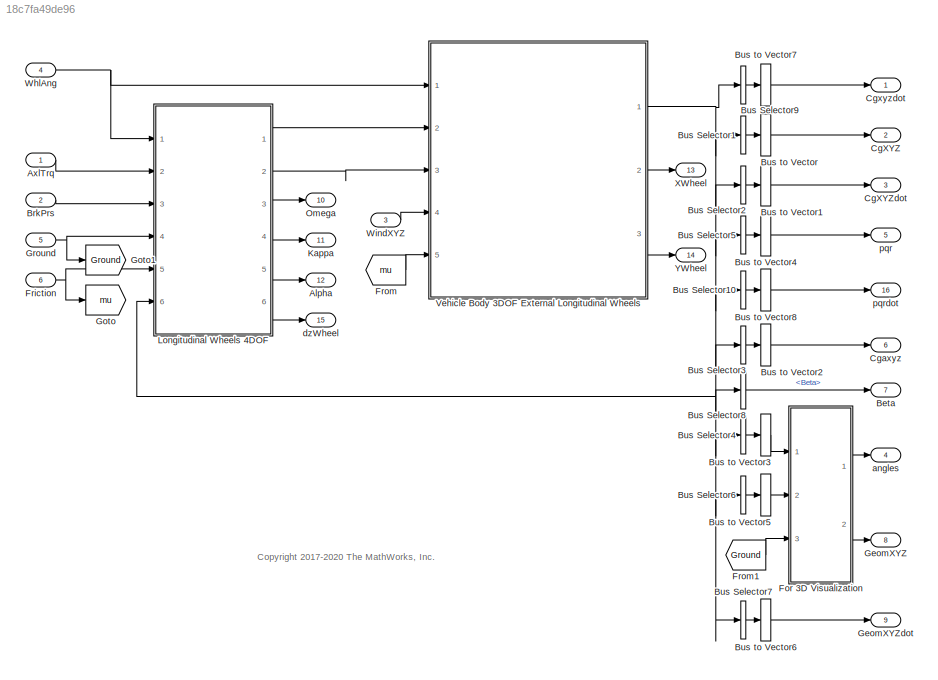
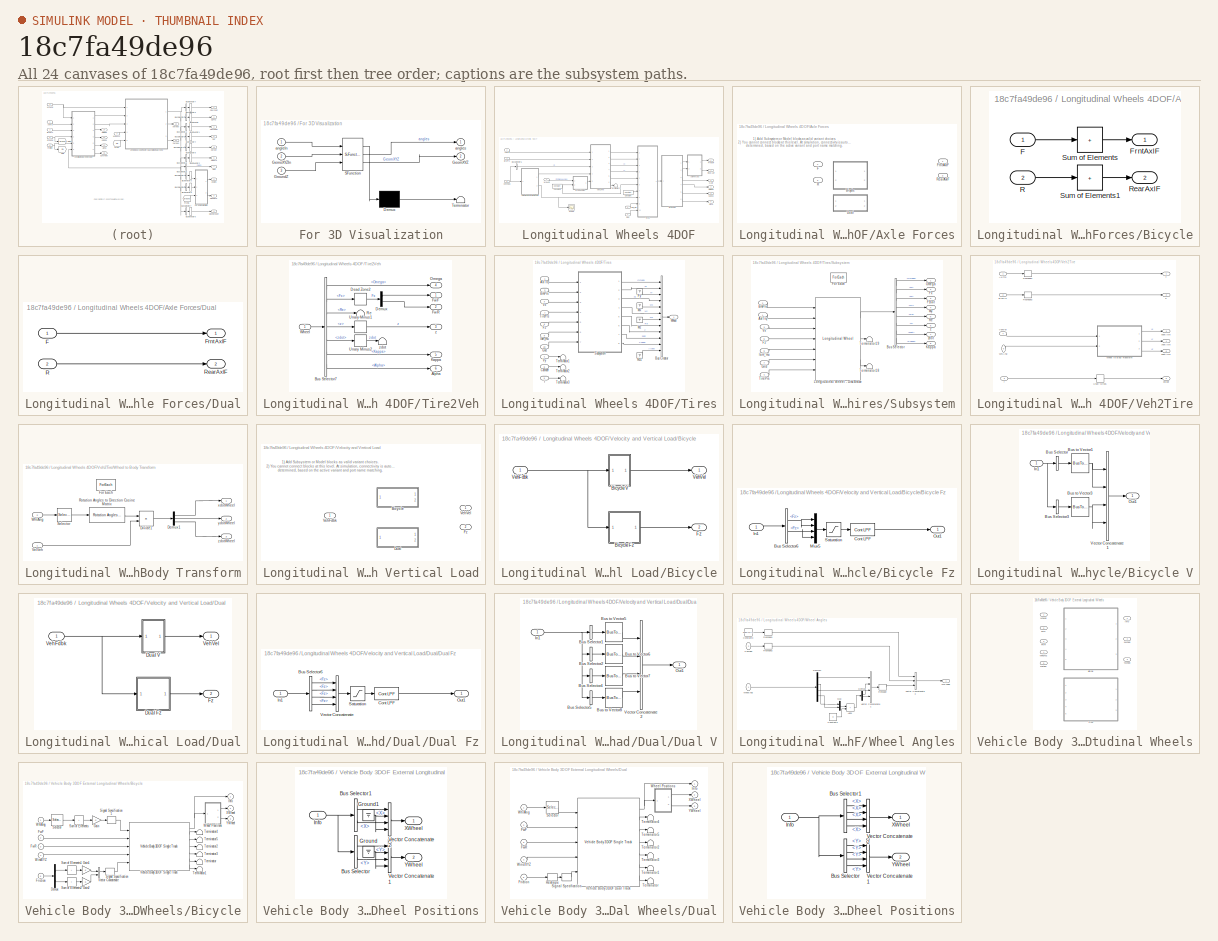
[diagram: thumbnail index - all 24 canvases of the model, root first then tree order]
MODEL slx_18c7fa49de96
KIND model
CONFIG AbsTol = auto
CONFIG EnableMultiTasking = off
CONFIG FixedStep = .001
CONFIG MaxStep = auto
CONFIG MinStep = auto
CONFIG RelTol = 3e-3
CONFIG SampleTimeConstraint = Unconstrained
CONFIG SolverName = ode23tb
CONFIG StartTime = 0.0
CONFIG StopTime = inf
WORKSPACE source: mxarray member
WORKSPACE A_mu = 10
WORKSPACE B_reff = 8.386
WORKSPACE CONVERTER_DATA = [0 0.1 0.2 0.3 0.4 0.5 0.6 0.7 0.8 0.81 0.82 0.83 ... (63 elements, 21x3)]
WORKSPACE Cps = 2
WORKSPACE Cz = 7766.25
WORKSPACE DOWN_TABLE = [0 0 0 0 0 0 5 5 7.5 7.5 15 15 ... (30 elements, 6x5)]
WORKSPACE DOWN_TH_BP = [0 5 40 50 90 100]
WORKSPACE D_reff = 0.25826
WORKSPACE EMAP = [-40 215 245 264 264 267 267 267 267 267 -44 117 ... (110 elements, 10x11)]
WORKSPACE F0z = [6086.4 4324.8]
WORKSPACE F_reff = 0.07394
WORKSPACE F_zmax = 10000
WORKSPACE F_zmin = 100
WORKSPACE F_zo = 4000
WORKSPACE Kz = 48000
WORKSPACE MF: object (value not decoded)
WORKSPACE NCyl = 6
WORKSPACE NE_VEC = [800 1200 1600 2000 2400 2800 3200 3600 4000 4400 4800]
WORKSPACE Pstd = 101325
WORKSPACE Rair = 287
WORKSPACE SUS: object (value not decoded)
WORKSPACE TH_VEC = [0 20 30 40 50 60 70 80 90 100]
WORKSPACE TWAITdn = 1.25
WORKSPACE TWAITup = 0.1
WORKSPACE Tin = [1 2 3 4 5 6 7 8 9 10 2 2 ... (20 elements, 10x2)]
WORKSPACE Tstd = 293.15
WORKSPACE UP_TABLE = [7.5 7.5 15 25 40 40 25 25 35 45 70 80 ... (30 elements, 6x5)]
WORKSPACE UP_TH_BP = [0 25 35 50 90 100]
WORKSPACE VEH: object (value not decoded)
WORKSPACE V_o = 16.7
WORKSPACE V_xlow = 1
WORKSPACE Vd = 0.00346
WORKSPACE WH: object (value not decoded)
WORKSPACE a = 1.515
WORKSPACE alpha_max = 1.5
WORKSPACE alpha_min = -1.5
WORKSPACE b = 1.504
WORKSPACE c_zo = 209651
WORKSPACE epsilon = 0.1
WORKSPACE f_air = [0 0 0 0 0 0 0 0 0 0 0 0 ... (256 elements, 16x16)]
WORKSPACE f_co = [0 0 0 0 0 0 0 0 0 0 0 0 ... (256 elements, 16x16)]
WORKSPACE f_co2 = [0 0 0 0 0 0 0 0 0 0 0 0 ... (256 elements, 16x16)]
WORKSPACE f_eff = [352.135682859 352.135682859 320.724378192 303.655312657 295.930136708 291.240087194 291.240271258 291.240312459 291.240275452 291.240198499 291.240100781 291.240018769 ... (256 elements, 16x16)]
WORKSPACE f_fuel = [0 0 0 0 0 0 0 0 0 0 0 0 ... (256 elements, 16x16)]
WORKSPACE f_hc = [0 0 0 0 0 0 0 0 0 0 0 0 ... (256 elements, 16x16)]
WORKSPACE f_nox = [0 0 0 0 0 0 0 0 0 0 0 0 ... (256 elements, 16x16)]
WORKSPACE f_pm = [0 0 0 0 0 0 0 0 0 0 0 0 ... (256 elements, 16x16)]
WORKSPACE f_susp_axl_bp = [1 2]
WORKSPACE f_susp_dz_bp = [-4 -0.14 -0.13 -0.12 -0.11 -0.1 -0.09 -0.08 -0.07 -0.06 -0.05 -0.04 ... (31 elements, 1x31)]
WORKSPACE f_susp_dzdot_bp = [-4 -0.14 -0.13 -0.12 -0.11 -0.1 -0.09 -0.08 -0.07 -0.06 -0.05 -0.04 ... (31 elements, 1x31)]
WORKSPACE f_susp_fmz = [-213379.591456 -28099.591456 -27619.591456 -27139.591456 -26659.591456 -26179.591456 -25699.591456 -25219.591456 -24739.591456 -24259.591456 -23779.591456 -23299.591456 ... (468968 elements, 31x31x61x2x4)]
WORKSPACE f_susp_geom = [-0.832564012244 0.043269987756 0.045538987756 0.047807987756 0.050076987756 0.052345987756 0.054614987756 0.056883987756 0.059152987756 0.061421987756 0.063690987756 0.065959987756 ... (11346 elements, 31x61x2x3)]
WORKSPACE f_susp_strgdelta_bp = [-0.523598775598 -0.506145483078 -0.488692190558 -0.471238898038 -0.453785605519 -0.436332312999 -0.418879020479 -0.401425727959 -0.383972435439 -0.366519142919 -0.349065850399 -0.331612557879 ... (61 elements, 1x61)]
WORKSPACE f_tbrake = [0 76.8593923996 105.140482948 131.533638111 157.926793274 176.658631717 176.65727296 176.656856686 176.656879077 176.657093756 176.657404516 176.65772406 ... (256 elements, 16x16)]
WORKSPACE f_tbrake_n_bpt = [0 649.519052838 912.419621844 1175.32019085 1438.22075986 1701.12132886 1964.02189787 2226.92246687 2489.82303588 2752.72360489 3015.62417389 3278.5247429 ... (16 elements, 1x16)]
WORKSPACE f_tbrake_t_bpt = [0 34.6410161514 61.0341713143 87.4273264773 113.82048164 140.213636803 166.606791966 192.999947129 219.393102292 245.786257455 272.179412618 298.572567781 ... (16 elements, 1x16)]
WORKSPACE f_texh = [766.752464599 766.752464599 786.17542386 801.679939032 884.591982581 910.574397722 910.571871054 910.570774534 910.570601632 910.570821151 910.571247242 910.571639815 ... (256 elements, 16x16)]
WORKSPACE f_twc_eff_co = [0.17 0.25 0.45 0.99 0.99 0.99 0.99]
WORKSPACE f_twc_eff_hc = [0.21 0.375 0.75 0.98 0.98 0.98 0.98]
WORKSPACE f_twc_eff_lam = [0.909090909 0.944055944 0.979020979 1 1.013986014 1.048951049 1.083916084]
WORKSPACE f_twc_eff_nox = [0.98 0.98 0.98 0.97 0.05 0.02 0]
WORKSPACE h = 0.134
WORKSPACE k_z = 50
WORKSPACE kappa_max = 1.5
WORKSPACE kappa_min = -1.5
WORKSPACE lam_Cx = 1
WORKSPACE lam_Cy = 1
WORKSPACE lam_Cz = 1
WORKSPACE lam_Ex = 1
WORKSPACE lam_Ey = 1
WORKSPACE lam_F_zo = 1
WORKSPACE lam_Hx = 1
WORKSPACE lam_Hy = 1
WORKSPACE lam_Kxkappa = 1
WORKSPACE lam_Kyalpha = 1
WORKSPACE lam_Kygamma = 1
WORKSPACE lam_Kzgamma = 1
WORKSPACE lam_Mr = 1
WORKSPACE lam_Mx = 1
WORKSPACE lam_My = 1
WORKSPACE lam_S = 1
WORKSPACE lam_VMx = 1
WORKSPACE lam_Vx = 1
WORKSPACE lam_Vy = 1
WORKSPACE lam_Vykappa = 1
WORKSPACE lam_muV = 0
WORKSPACE lam_mux = 1
WORKSPACE lam_muy = 1
WORKSPACE lam_t = 1
WORKSPACE lam_xalpha = 1
WORKSPACE lam_ykappa = 1
WORKSPACE numWheel = 4
WORKSPACE p_Cx1 = 1.579
WORKSPACE p_Cy1 = 1.3332
WORKSPACE p_Dx1 = 1.0422
WORKSPACE p_Dx2 = -0.08285
WORKSPACE p_Dx3 = 0
WORKSPACE p_Dy1 = 0.8784
WORKSPACE p_Dy2 = -0.06445
WORKSPACE p_Dy3 = 0
WORKSPACE p_Ex1 = 0.11185
WORKSPACE p_Ex2 = 0.3127
WORKSPACE p_Ex3 = 0
WORKSPACE p_Ex4 = 0.001603
WORKSPACE p_Ey1 = -0.8227
WORKSPACE p_Ey2 = -0.6062
WORKSPACE p_Ey3 = 0.09825
WORKSPACE p_Ey4 = -6.546
WORKSPACE p_Ey5 = 0
WORKSPACE p_Fz1 = 0.7098
WORKSPACE p_Hx1 = 0.00021585
WORKSPACE p_Hx2 = 0.0011538
WORKSPACE p_Hy1 = -0.0018043
WORKSPACE p_Hy2 = 0.003518
WORKSPACE p_Kx1 = 21.69
WORKSPACE p_Kx2 = 13.774
WORKSPACE p_Kx3 = -0.4119
WORKSPACE p_Ky1 = -15.314
WORKSPACE p_Ky2 = 1.7044
WORKSPACE p_Ky3 = 0.36986
WORKSPACE p_Ky4 = 1.9896
WORKSPACE p_Ky5 = 0
WORKSPACE p_Ky6 = -0.9004
WORKSPACE p_Ky7 = -0.2328
WORKSPACE p_Vx1 = 1.5973e-05
WORKSPACE p_Vx2 = 0.0001043
WORKSPACE p_Vy1 = -0.006642
WORKSPACE p_Vy2 = 0.03597
WORKSPACE p_Vy3 = -0.1621
WORKSPACE p_Vy4 = -0.4908
WORKSPACE p_pmx1 = 0
WORKSPACE p_px1 = -0.3489
WORKSPACE p_px2 = 0.382
WORKSPACE p_px3 = -0.09634
WORKSPACE p_px4 = 0.06447
WORKSPACE p_py1 = -0.6249
WORKSPACE p_py2 = -0.06535
WORKSPACE p_py3 = -0.1668
WORKSPACE p_py4 = 0.2834
WORKSPACE p_py5 = 0
WORKSPACE path: object (value not decoded)
WORKSPACE pio = 220000
WORKSPACE q_Fcx = 0
WORKSPACE q_Fz2 = 15.4
WORKSPACE q_Fzy = 0
WORKSPACE q_reo = 0.9974
WORKSPACE q_sx1 = -0.007764
WORKSPACE q_sx10 = 0.2824
WORKSPACE q_sx11 = 5.349
WORKSPACE q_sx12 = 0
WORKSPACE q_sx13 = 0
WORKSPACE q_sx14 = 0
WORKSPACE q_sx2 = 1.1915
WORKSPACE q_sx3 = 0.013948
WORKSPACE q_sx4 = 4.912
WORKSPACE q_sx5 = 1.02
WORKSPACE q_sx6 = 22.83
WORKSPACE q_sx7 = 0.7104
WORKSPACE q_sx8 = -0.023393
WORKSPACE q_sx9 = 0.6581
WORKSPACE q_sy1 = 0.00702
WORKSPACE q_sy2 = 0
WORKSPACE q_sy3 = 0.001515
WORKSPACE q_sy4 = 8.514e-05
WORKSPACE q_sy5 = 0
WORKSPACE q_sy6 = 0
WORKSPACE q_sy7 = 0.9008
WORKSPACE q_sy8 = -0.4089
WORKSPACE q_v1 = 0.0007742
WORKSPACE q_v2 = 0.04667
WORKSPACE r_Bx1 = 12.531
WORKSPACE r_Bx2 = 9.532
WORKSPACE r_Bx3 = 0
WORKSPACE r_By1 = 10.615
WORKSPACE r_By2 = 7.705
WORKSPACE r_By3 = 3.433e-06
WORKSPACE r_By4 = 0
WORKSPACE r_Cx1 = 1.019
WORKSPACE r_Cy1 = 1.0585
WORKSPACE r_Ex1 = -0.4487
WORKSPACE r_Ex2 = -0.4726
WORKSPACE r_Ey1 = 0.3132
WORKSPACE r_Ey2 = 7.63e-06
WORKSPACE r_Hx1 = 0.0002374
WORKSPACE r_Hy1 = 0.011646
WORKSPACE r_Hy2 = 7.63e-06
WORKSPACE r_Vy1 = 0.05654
WORKSPACE r_Vy2 = 7.63e-06
WORKSPACE r_Vy3 = 0
WORKSPACE r_Vy4 = 99.9
WORKSPACE r_Vy5 = 2
WORKSPACE r_Vy6 = 15.814
WORKSPACE r_o = 0.3135
WORKSPACE reqTmaxT = [nan 0.285774810084 0.647179872268 nan nan nan nan nan nan nan nan nan ... (168 elements, 21x8)]
WORKSPACE vehSpd = [0 2.77777777778 5.55555555556 8.33333333333 11.1111111111 13.8888888889 16.6666666667 19.4444444444 22.2222222222 25 27.7777777778 30.5555555556 ... (21 elements, 1x21)]
WORKSPACE vehWidth = 2
WORKSPACE w = 1
BLOCK [Outport] Alpha
  Port = 12
  PortDimensions = 4
  VectorParamsAs1DForOutWhenUnconnected = off
BLOCK [Inport] AxlTrq
  PortDimensions = 4
  Unit = N*m
BLOCK [Outport] Beta
  Port = 7
  VectorParamsAs1DForOutWhenUnconnected = off
BLOCK [Inport] BrkPrs
  Port = 2
  PortDimensions = 4
  Unit = Pa
BLOCK [BusSelector] Bus Selector1
  OutputAsBus = on
  OutputSignals = InertFrm.Cg.Disp.X,InertFrm.Cg.Disp.Y,InertFrm.Cg.Disp.Z
  Ports = [1, 1]
BLOCK [BusSelector] Bus Selector10
  OutputAsBus = on
  OutputSignals = BdyFrm.Cg.AngAcc.pdot,BdyFrm.Cg.AngAcc.qdot,BdyFrm.Cg.AngAcc.rdot
  Ports = [1, 1]
BLOCK [BusSelector] Bus Selector2
  OutputAsBus = on
  OutputSignals = InertFrm.Cg.Vel.Xdot,InertFrm.Cg.Vel.Ydot,InertFrm.Cg.Vel.Zdot
  Ports = [1, 1]
BLOCK [BusSelector] Bus Selector3
  OutputAsBus = on
  OutputSignals = BdyFrm.Cg.Acc.ax,BdyFrm.Cg.Acc.ay,BdyFrm.Cg.Acc.az
  Ports = [1, 1]
BLOCK [BusSelector] Bus Selector4
  OutputAsBus = on
  OutputSignals = InertFrm.Cg.Ang.phi,InertFrm.Cg.Ang.theta,InertFrm.Cg.Ang.psi
  Ports = [1, 1]
BLOCK [BusSelector] Bus Selector5
  OutputAsBus = on
  OutputSignals = BdyFrm.Cg.AngVel.p,BdyFrm.Cg.AngVel.q,BdyFrm.Cg.AngVel.r
  Ports = [1, 1]
BLOCK [BusSelector] Bus Selector6
  OutputAsBus = on
  OutputSignals = InertFrm.Geom.Disp.X,InertFrm.Geom.Disp.Y,InertFrm.Geom.Disp.Z
  Ports = [1, 1]
BLOCK [BusSelector] Bus Selector7
  OutputAsBus = on
  OutputSignals = InertFrm.Geom.Vel.Xdot,InertFrm.Geom.Vel.Ydot,InertFrm.Geom.Vel.Zdot
  Ports = [1, 1]
BLOCK [BusSelector] Bus Selector8
  OutputSignals = BdyFrm.Geom.Ang.Beta
  Ports = [1, 1]
BLOCK [BusSelector] Bus Selector9
  OutputAsBus = on
  OutputSignals = BdyFrm.Cg.Vel.xdot,BdyFrm.Cg.Vel.ydot,BdyFrm.Cg.Vel.zdot
  Ports = [1, 1]
BLOCK [BusToVector] Bus to Vector
BLOCK [BusToVector] Bus to Vector1
BLOCK [BusToVector] Bus to Vector2
BLOCK [BusToVector] Bus to Vector3
BLOCK [BusToVector] Bus to Vector4
BLOCK [BusToVector] Bus to Vector5
BLOCK [BusToVector] Bus to Vector6
BLOCK [BusToVector] Bus to Vector7
BLOCK [BusToVector] Bus to Vector8
BLOCK [Outport] CgXYZ
  Port = 2
  VectorParamsAs1DForOutWhenUnconnected = off
BLOCK [Outport] CgXYZdot
  Port = 3
  VectorParamsAs1DForOutWhenUnconnected = off
BLOCK [Outport] Cgaxyz
  Port = 6
  VectorParamsAs1DForOutWhenUnconnected = off
BLOCK [Outport] Cgxyzdot
  VectorParamsAs1DForOutWhenUnconnected = off
BLOCK [SubSystem] For 3D Visualization
  ErrorFcn = Stateflow.Translate.translate
  PermitHierarchicalResolution = ExplicitOnly
  Ports = [3, 2]
  RequestExecContextInheritance = off
  SFBlockType = MATLAB Function
  TreatAsAtomicUnit = on
BLOCK [Demux] For 3D Visualization/ Demux 
  Outputs = 1
  Ports = [1, 1]
BLOCK [S-Function] For 3D Visualization/ SFunction 
  EnableBusSupport = on
  FunctionName = sf_sfun
  Parameters = trackW,wheelB
  PortCounts = [3 3]
  Ports = [3, 3]
  SFcnIsStateOwnerBlock = off
  SFunctionDeploymentMode = off
  Tag = Stateflow S-Function 2
BLOCK [Terminator] For 3D Visualization/ Terminator 
BLOCK [Inport] For 3D Visualization/GemoXYZIn
  Port = 2
BLOCK [Outport] For 3D Visualization/GeomXYZ
  Port = 2
  VectorParamsAs1DForOutWhenUnconnected = off
BLOCK [Inport] For 3D Visualization/GroundZ
  Port = 3
BLOCK [Inport] For 3D Visualization/angleIn
BLOCK [Outport] For 3D Visualization/angles
  VectorParamsAs1DForOutWhenUnconnected = off
BLOCK [Inport] Friction
  Port = 6
  PortDimensions = 4
  Unit = 1
BLOCK [From] From
  GotoTag = mu
BLOCK [From] From1
  GotoTag = Ground
BLOCK [Outport] GeomXYZ
  Port = 8
  Unit = m
  VectorParamsAs1DForOutWhenUnconnected = off
BLOCK [Outport] GeomXYZdot
  Port = 9
  Unit = m/s
  VectorParamsAs1DForOutWhenUnconnected = off
BLOCK [Goto] Goto
  GotoTag = mu
BLOCK [Goto] Goto1
  GotoTag = Ground
BLOCK [Inport] Ground
  Port = 5
  PortDimensions = 4
  Unit = m
BLOCK [Outport] Kappa
  Port = 11
  PortDimensions = 4
  VectorParamsAs1DForOutWhenUnconnected = off
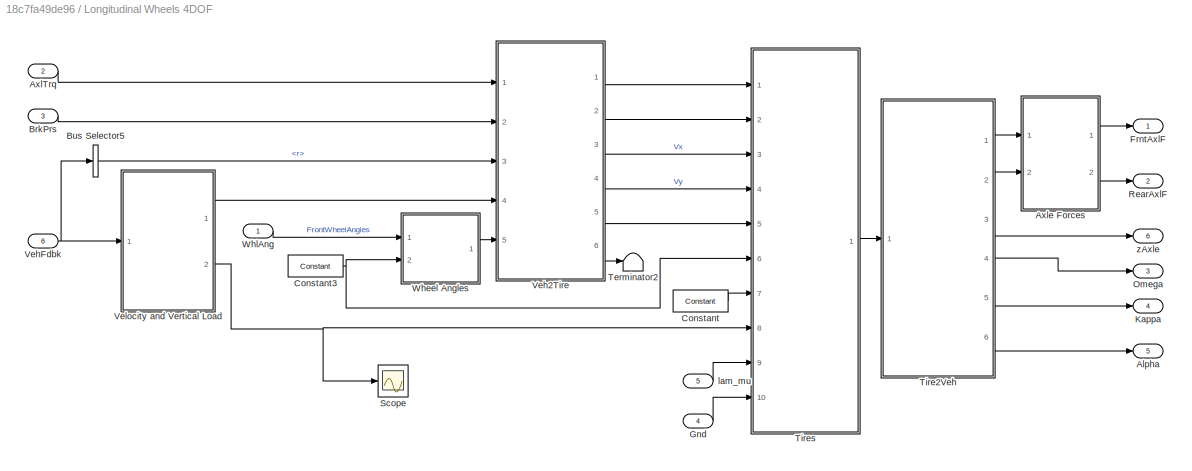
BLOCK [SubSystem] Longitudinal Wheels 4DOF
  AttributesFormatString = %<wheelMode>
  Ports = [6, 6]
  RequestExecContextInheritance = off
  VariantControl = 1
BLOCK [Outport] Longitudinal Wheels 4DOF/Alpha
  Port = 5
  VectorParamsAs1DForOutWhenUnconnected = off
BLOCK [Inport] Longitudinal Wheels 4DOF/AxlTrq
  Port = 2
BLOCK [SubSystem] Longitudinal Wheels 4DOF/Axle Forces
  LabelModeActiveChoice = 1
  Ports = [2, 2]
  RequestExecContextInheritance = off
  Variant = on
  VariantControlMode = label
BLOCK [SubSystem] Longitudinal Wheels 4DOF/Axle Forces/Bicycle
  Ports = [2, 2]
  RequestExecContextInheritance = off
  VariantControl = 0
BLOCK [Inport] Longitudinal Wheels 4DOF/Axle Forces/Bicycle/F
BLOCK [Outport] Longitudinal Wheels 4DOF/Axle Forces/Bicycle/FrntAxlF
  Unit = N
  VectorParamsAs1DForOutWhenUnconnected = off
BLOCK [Inport] Longitudinal Wheels 4DOF/Axle Forces/Bicycle/R
  Port = 2
BLOCK [Outport] Longitudinal Wheels 4DOF/Axle Forces/Bicycle/RearAxlF
  Port = 2
  Unit = N
  VectorParamsAs1DForOutWhenUnconnected = off
BLOCK [Sum] Longitudinal Wheels 4DOF/Axle Forces/Bicycle/Sum of Elements
  IconShape = rectangular
  Inputs = +
  Ports = [1, 1]
BLOCK [Sum] Longitudinal Wheels 4DOF/Axle Forces/Bicycle/Sum of Elements1
  IconShape = rectangular
  Inputs = +
  Ports = [1, 1]
BLOCK [SubSystem] Longitudinal Wheels 4DOF/Axle Forces/Dual
  Ports = [2, 2]
  RequestExecContextInheritance = off
  VariantControl = 1
BLOCK [Inport] Longitudinal Wheels 4DOF/Axle Forces/Dual/F
BLOCK [Outport] Longitudinal Wheels 4DOF/Axle Forces/Dual/FrntAxlF
  Unit = N
  VectorParamsAs1DForOutWhenUnconnected = off
BLOCK [Inport] Longitudinal Wheels 4DOF/Axle Forces/Dual/R
  Port = 2
BLOCK [Outport] Longitudinal Wheels 4DOF/Axle Forces/Dual/RearAxlF
  Port = 2
  Unit = N
  VectorParamsAs1DForOutWhenUnconnected = off
BLOCK [Inport] Longitudinal Wheels 4DOF/Axle Forces/F
BLOCK [Outport] Longitudinal Wheels 4DOF/Axle Forces/FrntAxlF
  Unit = N
  VectorParamsAs1DForOutWhenUnconnected = off
BLOCK [Inport] Longitudinal Wheels 4DOF/Axle Forces/R
  Port = 2
BLOCK [Outport] Longitudinal Wheels 4DOF/Axle Forces/RearAxlF
  Port = 2
  Unit = N
  VectorParamsAs1DForOutWhenUnconnected = off
BLOCK [Inport] Longitudinal Wheels 4DOF/BrkPrs
  Port = 3
BLOCK [BusSelector] Longitudinal Wheels 4DOF/Bus Selector5
  OutputSignals = BdyFrm.Cg.AngVel.r
  Ports = [1, 1]
BLOCK [Reference] Longitudinal Wheels 4DOF/Constant  REF=vehdynlibtirecommon/Constant
  Ports = [0, 1]
  SourceBlock = vehdynlibtirecommon/Constant
  SourceProductBaseCode = VE
BLOCK [Reference] Longitudinal Wheels 4DOF/Constant3  REF=vehdynlibtirecommon/Constant
  Ports = [0, 1]
  SourceBlock = vehdynlibtirecommon/Constant
  SourceProductBaseCode = VE
BLOCK [Outport] Longitudinal Wheels 4DOF/FrntAxlF
  Unit = N
  VectorParamsAs1DForOutWhenUnconnected = off
BLOCK [Inport] Longitudinal Wheels 4DOF/Gnd
  Port = 4
  PortDimensions = 4
BLOCK [Outport] Longitudinal Wheels 4DOF/Kappa
  Port = 4
  VectorParamsAs1DForOutWhenUnconnected = off
BLOCK [Outport] Longitudinal Wheels 4DOF/Omega
  Port = 3
  VectorParamsAs1DForOutWhenUnconnected = off
BLOCK [Outport] Longitudinal Wheels 4DOF/RearAxlF
  Port = 2
  Unit = N
  VectorParamsAs1DForOutWhenUnconnected = off
BLOCK [Scope] Longitudinal Wheels 4DOF/Scope
  Floating = off
  NumInputPorts = 1
  Ports = [1]
  ScopeSpecificationString = Simulink.scopes.TimeScopeBlockCfg('CurrentConfiguration', extmgr.ConfigurationSet(extmgr.Configuration('Core','General UI',true),extmgr.Configuration('Core','Source UI',true),extmgr.Configuration('Sources','WiredSimulink',true),extmgr.Configuration('Visuals','Time Domain',true,'SerializedDisplays',{struct('MinYLimReal','-397.06228','MaxYLimReal','3573.56048','YLabelReal','','MinYLimMag',' 0.00000'...<+1482ch>
BLOCK [Terminator] Longitudinal Wheels 4DOF/Terminator2
BLOCK [SubSystem] Longitudinal Wheels 4DOF/Tire2Veh
  Ports = [1, 6]
  RequestExecContextInheritance = off
BLOCK [Outport] Longitudinal Wheels 4DOF/Tire2Veh/Alpha
  Port = 6
  VectorParamsAs1DForOutWhenUnconnected = off
BLOCK [BusSelector] Longitudinal Wheels 4DOF/Tire2Veh/Bus Selector7
  OutputSignals = Omega,Fx,Re,z,zdot,Kappa,Alpha
  Ports = [1, 7]
BLOCK [DeadZone] Longitudinal Wheels 4DOF/Tire2Veh/Dead Zone2
  LowerValue = -5
  UpperValue = 5
  ZeroCross = off
BLOCK [Demux] Longitudinal Wheels 4DOF/Tire2Veh/Demux
  Outputs = [2,2]
  Ports = [1, 2]
BLOCK [Outport] Longitudinal Wheels 4DOF/Tire2Veh/FwF
  VectorParamsAs1DForOutWhenUnconnected = off
BLOCK [Outport] Longitudinal Wheels 4DOF/Tire2Veh/FwR
  Port = 2
  VectorParamsAs1DForOutWhenUnconnected = off
BLOCK [Outport] Longitudinal Wheels 4DOF/Tire2Veh/Kappa
  Port = 5
  VectorParamsAs1DForOutWhenUnconnected = off
BLOCK [Outport] Longitudinal Wheels 4DOF/Tire2Veh/Omega
  Port = 4
  VectorParamsAs1DForOutWhenUnconnected = off
BLOCK [Terminator] Longitudinal Wheels 4DOF/Tire2Veh/Re
BLOCK [UnaryMinus] Longitudinal Wheels 4DOF/Tire2Veh/Unary Minus1
BLOCK [UnaryMinus] Longitudinal Wheels 4DOF/Tire2Veh/Unary Minus2
BLOCK [Inport] Longitudinal Wheels 4DOF/Tire2Veh/Wheel
BLOCK [Outport] Longitudinal Wheels 4DOF/Tire2Veh/z
  Port = 3
  VectorParamsAs1DForOutWhenUnconnected = off
BLOCK [Terminator] Longitudinal Wheels 4DOF/Tire2Veh/zdot
BLOCK [SubSystem] Longitudinal Wheels 4DOF/Tires
  Ports = [10, 1]
  RequestExecContextInheritance = off
BLOCK [Inport] Longitudinal Wheels 4DOF/Tires/AxlTrq
BLOCK [Inport] Longitudinal Wheels 4DOF/Tires/BrkPrs
  Port = 2
BLOCK [BusCreator] Longitudinal Wheels 4DOF/Tires/Bus Creator
  DisplayOption = bar
  InheritFromInputs = on
  Inputs = 12
  Ports = [12, 1]
BLOCK [Inport] Longitudinal Wheels 4DOF/Tires/Camber
  Port = 6
BLOCK [Ground] Longitudinal Wheels 4DOF/Tires/Fy
BLOCK [Inport] Longitudinal Wheels 4DOF/Tires/Fz
  Port = 8
BLOCK [Inport] Longitudinal Wheels 4DOF/Tires/Gnd
  Port = 10
BLOCK [Ground] Longitudinal Wheels 4DOF/Tires/Mx
BLOCK [Ground] Longitudinal Wheels 4DOF/Tires/Mz
BLOCK [Ground] Longitudinal Wheels 4DOF/Tires/Mz1
BLOCK [SubSystem] Longitudinal Wheels 4DOF/Tires/Subsystem
  Ports = [7, 8]
  RequestExecContextInheritance = off
BLOCK [Inport] Longitudinal Wheels 4DOF/Tires/Subsystem/AxlTrq
  Partition = on
  PartitionDimension = 1
  PartitionOffset = 0
  PartitionWidth = 1
BLOCK [Inport] Longitudinal Wheels 4DOF/Tires/Subsystem/BrkPrs
  Partition = on
  PartitionDimension = 1
  PartitionOffset = 0
  PartitionWidth = 1
  Port = 2
BLOCK [BusSelector] Longitudinal Wheels 4DOF/Tires/Subsystem/Bus Selector
  OutputSignals = Omega,Fx,Fz,My,Re,z,zdot,Kappa
  Ports = [1, 8]
BLOCK [ForEach] Longitudinal Wheels 4DOF/Tires/Subsystem/For Each
  DisableCoverage = on
  Ports = []
BLOCK [Outport] Longitudinal Wheels 4DOF/Tires/Subsystem/Fx
  ConcatenationDimension = 1
  Port = 2
  VectorParamsAs1DForOutWhenUnconnected = off
BLOCK [Inport] Longitudinal Wheels 4DOF/Tires/Subsystem/Fz
  Partition = on
  PartitionDimension = 1
  PartitionOffset = 0
  PartitionWidth = 1
  Port = 5
BLOCK [Outport] Longitudinal Wheels 4DOF/Tires/Subsystem/FzOut
  ConcatenationDimension = 1
  Port = 3
  VectorParamsAs1DForOutWhenUnconnected = off
BLOCK [Inport] Longitudinal Wheels 4DOF/Tires/Subsystem/Gnd
  Partition = on
  PartitionDimension = 1
  PartitionOffset = 0
  PartitionWidth = 1
  Port = 7
BLOCK [Outport] Longitudinal Wheels 4DOF/Tires/Subsystem/Kappa
  ConcatenationDimension = 1
  Port = 8
  VectorParamsAs1DForOutWhenUnconnected = off
BLOCK [Reference] Longitudinal Wheels 4DOF/Tires/Subsystem/Longitudinal Wheel - Disk Brake  REF=autolibshared/Longitudinal Wheel
  AttributesFormatString = Fx Type: %<FxType>\nRolling Type: %<rollingType>
  Ports = [7, 3]
  SourceBlock = autolibshared/Longitudinal Wheel
  SourceProductBaseCode = PW,MT,UV,VE,VP
  SourceType = Longitudinal Wheel
BLOCK [Outport] Longitudinal Wheels 4DOF/Tires/Subsystem/My
  ConcatenationDimension = 1
  Port = 4
  VectorParamsAs1DForOutWhenUnconnected = off
BLOCK [Outport] Longitudinal Wheels 4DOF/Tires/Subsystem/Omega
  ConcatenationDimension = 1
  VectorParamsAs1DForOutWhenUnconnected = off
BLOCK [Outport] Longitudinal Wheels 4DOF/Tires/Subsystem/Re
  ConcatenationDimension = 1
  Port = 5
  VectorParamsAs1DForOutWhenUnconnected = off
BLOCK [Terminator] Longitudinal Wheels 4DOF/Tires/Subsystem/Terminator18
BLOCK [Terminator] Longitudinal Wheels 4DOF/Tires/Subsystem/Terminator19
BLOCK [Inport] Longitudinal Wheels 4DOF/Tires/Subsystem/TirePrs
  Partition = on
  PartitionDimension = 1
  PartitionOffset = 0
  PartitionWidth = 1
  Port = 4
BLOCK [Inport] Longitudinal Wheels 4DOF/Tires/Subsystem/Vx
  Partition = on
  PartitionDimension = 1
  PartitionOffset = 0
  PartitionWidth = 1
  Port = 3
BLOCK [Inport] Longitudinal Wheels 4DOF/Tires/Subsystem/lam_mu
  Partition = on
  PartitionDimension = 1
  PartitionOffset = 0
  PartitionWidth = 1
  Port = 6
BLOCK [Outport] Longitudinal Wheels 4DOF/Tires/Subsystem/z
  ConcatenationDimension = 1
  Port = 6
  VectorParamsAs1DForOutWhenUnconnected = off
BLOCK [Outport] Longitudinal Wheels 4DOF/Tires/Subsystem/zdot
  ConcatenationDimension = 1
  Port = 7
  VectorParamsAs1DForOutWhenUnconnected = off
BLOCK [Terminator] Longitudinal Wheels 4DOF/Tires/Terminator1
BLOCK [Terminator] Longitudinal Wheels 4DOF/Tires/Terminator2
BLOCK [Terminator] Longitudinal Wheels 4DOF/Tires/Terminator3
BLOCK [Inport] Longitudinal Wheels 4DOF/Tires/TirePrs
  Port = 7
BLOCK [Inport] Longitudinal Wheels 4DOF/Tires/Vx
  Port = 3
BLOCK [Inport] Longitudinal Wheels 4DOF/Tires/Vy
  Port = 4
BLOCK [Outport] Longitudinal Wheels 4DOF/Tires/Wheel
  VectorParamsAs1DForOutWhenUnconnected = off
BLOCK [Inport] Longitudinal Wheels 4DOF/Tires/lam_mu
  Port = 9
BLOCK [Inport] Longitudinal Wheels 4DOF/Tires/r
  Port = 5
BLOCK [SubSystem] Longitudinal Wheels 4DOF/Veh2Tire
  Ports = [5, 6]
  RequestExecContextInheritance = off
BLOCK [Inport] Longitudinal Wheels 4DOF/Veh2Tire/AxlTrq
BLOCK [Inport] Longitudinal Wheels 4DOF/Veh2Tire/BrkPrs
  Port = 2
BLOCK [Outport] Longitudinal Wheels 4DOF/Veh2Tire/P
  Port = 2
  VectorParamsAs1DForOutWhenUnconnected = off
BLOCK [Reshape] Longitudinal Wheels 4DOF/Veh2Tire/Reshape3
  Ports = [1, 1]
BLOCK [Reshape] Longitudinal Wheels 4DOF/Veh2Tire/Reshape4
  Ports = [1, 1]
BLOCK [Outport] Longitudinal Wheels 4DOF/Veh2Tire/T
  VectorParamsAs1DForOutWhenUnconnected = off
BLOCK [UnaryMinus] Longitudinal Wheels 4DOF/Veh2Tire/Unary Minus
BLOCK [Inport] Longitudinal Wheels 4DOF/Veh2Tire/VehVel
  Port = 4
BLOCK [SubSystem] Longitudinal Wheels 4DOF/Veh2Tire/Wheel to Body Transform
  Ports = [2, 3]
  RequestExecContextInheritance = off
BLOCK [Demux] Longitudinal Wheels 4DOF/Veh2Tire/Wheel to Body Transform/Demux1
  Outputs = 3
  Ports = [1, 3]
BLOCK [Product] Longitudinal Wheels 4DOF/Veh2Tire/Wheel to Body Transform/Divide1
  Inputs = **
  Multiplication = Matrix(*)
  Ports = [2, 1]
BLOCK [ForEach] Longitudinal Wheels 4DOF/Veh2Tire/Wheel to Body Transform/For Each
  DisableCoverage = on
  Ports = []
BLOCK [Reference] Longitudinal Wheels 4DOF/Veh2Tire/Wheel to Body Transform/Rotation Angles to Direction Cosine Matrix  REF=sharedtransform/Rotation Angles to
Direction Cosine Matrix
  AttributesFormatString = Rotation Order: %<rotationOrder>
  Ports = [1, 1]
  SourceBlock = sharedtransform/Rotation Angles to\nDirection Cosine Matrix
  SourceProductBaseCode = AE,PW,MT,UV,VE,VP
  SourceType = Ang2DCM
BLOCK [Selector] Longitudinal Wheels 4DOF/Veh2Tire/Wheel to Body Transform/Selector
  IndexOptions = Index vector (dialog)
  Indices = [3 2 1]
  InputPortWidth = 3
  OutputSizes = 1
  Ports = [1, 1]
BLOCK [Inport] Longitudinal Wheels 4DOF/Veh2Tire/Wheel to Body Transform/VelVeh
  Partition = on
  PartitionDimension = 2
  PartitionOffset = 0
  PartitionWidth = 1
BLOCK [Inport] Longitudinal Wheels 4DOF/Veh2Tire/Wheel to Body Transform/WhlAng
  Partition = on
  PartitionDimension = 2
  PartitionOffset = 0
  PartitionWidth = 1
  Port = 2
BLOCK [Outport] Longitudinal Wheels 4DOF/Veh2Tire/Wheel to Body Transform/xdotWheel
  ConcatenationDimension = 1
  VectorParamsAs1DForOutWhenUnconnected = off
BLOCK [Outport] Longitudinal Wheels 4DOF/Veh2Tire/Wheel to Body Transform/ydotWheel
  ConcatenationDimension = 1
  Port = 2
  VectorParamsAs1DForOutWhenUnconnected = off
BLOCK [Outport] Longitudinal Wheels 4DOF/Veh2Tire/Wheel to Body Transform/zdotWheel
  ConcatenationDimension = 1
  Port = 3
  VectorParamsAs1DForOutWhenUnconnected = off
BLOCK [Inport] Longitudinal Wheels 4DOF/Veh2Tire/WhlAng
  Port = 5
BLOCK [Outport] Longitudinal Wheels 4DOF/Veh2Tire/psidot
  Port = 5
  VectorParamsAs1DForOutWhenUnconnected = off
BLOCK [Inport] Longitudinal Wheels 4DOF/Veh2Tire/r
  Port = 3
BLOCK [Outport] Longitudinal Wheels 4DOF/Veh2Tire/xdotAxle
  Port = 3
  VectorParamsAs1DForOutWhenUnconnected = off
BLOCK [Outport] Longitudinal Wheels 4DOF/Veh2Tire/ydotAxle
  Port = 4
  VectorParamsAs1DForOutWhenUnconnected = off
BLOCK [Outport] Longitudinal Wheels 4DOF/Veh2Tire/zdotAxle
  Port = 6
  VectorParamsAs1DForOutWhenUnconnected = off
BLOCK [Inport] Longitudinal Wheels 4DOF/VehFdbk
  Port = 6
BLOCK [SubSystem] Longitudinal Wheels 4DOF/Velocity and Vertical Load
  LabelModeActiveChoice = 1
  Ports = [1, 2]
  RequestExecContextInheritance = off
  Variant = on
  VariantControlMode = label
BLOCK [SubSystem] Longitudinal Wheels 4DOF/Velocity and Vertical Load/Bicycle
  Ports = [1, 2]
  RequestExecContextInheritance = off
  VariantControl = 0
BLOCK [SubSystem] Longitudinal Wheels 4DOF/Velocity and Vertical Load/Bicycle/Bicycle Fz
  Ports = [1, 1]
  RequestExecContextInheritance = off
BLOCK [BusSelector] Longitudinal Wheels 4DOF/Velocity and Vertical Load/Bicycle/Bicycle Fz/Bus Selector6
  OutputSignals = BdyFrm.Forces.Tires.FrntTire.Fz,BdyFrm.Forces.Tires.RearTire.Fz
  Ports = [1, 2]
BLOCK [Reference] Longitudinal Wheels 4DOF/Velocity and Vertical Load/Bicycle/Bicycle Fz/Cont LPF  REF=autolibutils/Cont LPF
  Ports = [1, 1]
  SourceBlock = autolibutils/Cont LPF
  SourceProductBaseCode = PW,MT,UV,VE,VP
BLOCK [Inport] Longitudinal Wheels 4DOF/Velocity and Vertical Load/Bicycle/Bicycle Fz/In1
BLOCK [Mux] Longitudinal Wheels 4DOF/Velocity and Vertical Load/Bicycle/Bicycle Fz/Mux5
  DisplayOption = bar
  Ports = [4, 1]
BLOCK [Outport] Longitudinal Wheels 4DOF/Velocity and Vertical Load/Bicycle/Bicycle Fz/Out1
  VectorParamsAs1DForOutWhenUnconnected = off
BLOCK [Saturate] Longitudinal Wheels 4DOF/Velocity and Vertical Load/Bicycle/Bicycle Fz/Saturation
  LowerLimit = 1000
  UpperLimit = 20e3
  ZeroCross = off
BLOCK [SubSystem] Longitudinal Wheels 4DOF/Velocity and Vertical Load/Bicycle/Bicycle V
  Ports = [1, 1]
  RequestExecContextInheritance = off
BLOCK [BusSelector] Longitudinal Wheels 4DOF/Velocity and Vertical Load/Bicycle/Bicycle V/Bus Selector
  OutputAsBus = on
  OutputSignals = BdyFrm.FrntAxl.Vel.xdot,BdyFrm.FrntAxl.Vel.ydot,BdyFrm.FrntAxl.Vel.zdot
  Ports = [1, 1]
BLOCK [BusSelector] Longitudinal Wheels 4DOF/Velocity and Vertical Load/Bicycle/Bicycle V/Bus Selector3
  OutputAsBus = on
  OutputSignals = BdyFrm.RearAxl.Vel.xdot,BdyFrm.RearAxl.Vel.ydot,BdyFrm.RearAxl.Vel.zdot
  Ports = [1, 1]
BLOCK [BusToVector] Longitudinal Wheels 4DOF/Velocity and Vertical Load/Bicycle/Bicycle V/Bus to Vector1
BLOCK [BusToVector] Longitudinal Wheels 4DOF/Velocity and Vertical Load/Bicycle/Bicycle V/Bus to Vector3
BLOCK [Inport] Longitudinal Wheels 4DOF/Velocity and Vertical Load/Bicycle/Bicycle V/In1
BLOCK [Outport] Longitudinal Wheels 4DOF/Velocity and Vertical Load/Bicycle/Bicycle V/Out1
  VectorParamsAs1DForOutWhenUnconnected = off
BLOCK [Concatenate] Longitudinal Wheels 4DOF/Velocity and Vertical Load/Bicycle/Bicycle V/Vector Concatenate1
  ConcatenateDimension = 2
  Mode = Multidimensional array
  NumInputs = 4
  Ports = [4, 1]
BLOCK [Outport] Longitudinal Wheels 4DOF/Velocity and Vertical Load/Bicycle/Fz
  Port = 2
  VectorParamsAs1DForOutWhenUnconnected = off
BLOCK [Inport] Longitudinal Wheels 4DOF/Velocity and Vertical Load/Bicycle/VehFdbk
BLOCK [Outport] Longitudinal Wheels 4DOF/Velocity and Vertical Load/Bicycle/VehVel
  VectorParamsAs1DForOutWhenUnconnected = off
BLOCK [SubSystem] Longitudinal Wheels 4DOF/Velocity and Vertical Load/Dual
  Ports = [1, 2]
  RequestExecContextInheritance = off
  VariantControl = 1
BLOCK [SubSystem] Longitudinal Wheels 4DOF/Velocity and Vertical Load/Dual/Dual Fz
  Ports = [1, 1]
  RequestExecContextInheritance = off
BLOCK [BusSelector] Longitudinal Wheels 4DOF/Velocity and Vertical Load/Dual/Dual Fz/Bus Selector6
  OutputSignals = BdyFrm.Forces.Tires.FrntTires.Lft.Fz,BdyFrm.Forces.Tires.FrntTires.Rght.Fz,BdyFrm.Forces.Tires.RearTires.Lft.Fz,BdyFrm.Forces.Tires.RearTires.Rght.Fz
  Ports = [1, 4]
BLOCK [Reference] Longitudinal Wheels 4DOF/Velocity and Vertical Load/Dual/Dual Fz/Cont LPF  REF=autolibutils/Cont LPF
  Ports = [1, 1]
  SourceBlock = autolibutils/Cont LPF
  SourceProductBaseCode = PW,MT,UV,VE,VP
BLOCK [Inport] Longitudinal Wheels 4DOF/Velocity and Vertical Load/Dual/Dual Fz/In1
BLOCK [Outport] Longitudinal Wheels 4DOF/Velocity and Vertical Load/Dual/Dual Fz/Out1
  VectorParamsAs1DForOutWhenUnconnected = off
BLOCK [Saturate] Longitudinal Wheels 4DOF/Velocity and Vertical Load/Dual/Dual Fz/Saturation
  LowerLimit = 1000
  UpperLimit = 20e3
  ZeroCross = off
BLOCK [Concatenate] Longitudinal Wheels 4DOF/Velocity and Vertical Load/Dual/Dual Fz/Vector Concatenate
  NumInputs = 4
  Ports = [4, 1]
BLOCK [SubSystem] Longitudinal Wheels 4DOF/Velocity and Vertical Load/Dual/Dual V
  Ports = [1, 1]
  RequestExecContextInheritance = off
BLOCK [BusSelector] Longitudinal Wheels 4DOF/Velocity and Vertical Load/Dual/Dual V/Bus Selector1
  OutputAsBus = on
  OutputSignals = BdyFrm.FrntAxl.Lft.Vel.xdot,BdyFrm.FrntAxl.Lft.Vel.ydot,BdyFrm.FrntAxl.Lft.Vel.zdot
  Ports = [1, 1]
BLOCK [BusSelector] Longitudinal Wheels 4DOF/Velocity and Vertical Load/Dual/Dual V/Bus Selector2
  OutputAsBus = on
  OutputSignals = BdyFrm.FrntAxl.Rght.Vel.xdot,BdyFrm.FrntAxl.Rght.Vel.ydot,BdyFrm.FrntAxl.Rght.Vel.zdot
  Ports = [1, 1]
BLOCK [BusSelector] Longitudinal Wheels 4DOF/Velocity and Vertical Load/Dual/Dual V/Bus Selector4
  OutputAsBus = on
  OutputSignals = BdyFrm.RearAxl.Lft.Vel.xdot,BdyFrm.RearAxl.Lft.Vel.ydot,BdyFrm.RearAxl.Lft.Vel.zdot
  Ports = [1, 1]
BLOCK [BusSelector] Longitudinal Wheels 4DOF/Velocity and Vertical Load/Dual/Dual V/Bus Selector5
  OutputAsBus = on
  OutputSignals = BdyFrm.RearAxl.Rght.Vel.xdot,BdyFrm.RearAxl.Rght.Vel.ydot,BdyFrm.RearAxl.Rght.Vel.zdot
  Ports = [1, 1]
BLOCK [BusToVector] Longitudinal Wheels 4DOF/Velocity and Vertical Load/Dual/Dual V/Bus to Vector5
BLOCK [BusToVector] Longitudinal Wheels 4DOF/Velocity and Vertical Load/Dual/Dual V/Bus to Vector6
BLOCK [BusToVector] Longitudinal Wheels 4DOF/Velocity and Vertical Load/Dual/Dual V/Bus to Vector7
BLOCK [BusToVector] Longitudinal Wheels 4DOF/Velocity and Vertical Load/Dual/Dual V/Bus to Vector8
BLOCK [Inport] Longitudinal Wheels 4DOF/Velocity and Vertical Load/Dual/Dual V/In1
BLOCK [Outport] Longitudinal Wheels 4DOF/Velocity and Vertical Load/Dual/Dual V/Out1
  VectorParamsAs1DForOutWhenUnconnected = off
BLOCK [Concatenate] Longitudinal Wheels 4DOF/Velocity and Vertical Load/Dual/Dual V/Vector Concatenate2
  ConcatenateDimension = 2
  Mode = Multidimensional array
  NumInputs = 4
  Ports = [4, 1]
BLOCK [Outport] Longitudinal Wheels 4DOF/Velocity and Vertical Load/Dual/Fz
  Port = 2
  VectorParamsAs1DForOutWhenUnconnected = off
BLOCK [Inport] Longitudinal Wheels 4DOF/Velocity and Vertical Load/Dual/VehFdbk
BLOCK [Outport] Longitudinal Wheels 4DOF/Velocity and Vertical Load/Dual/VehVel
  VectorParamsAs1DForOutWhenUnconnected = off
BLOCK [Outport] Longitudinal Wheels 4DOF/Velocity and Vertical Load/Fz
  Port = 2
  PortDimensions = 4
  VectorParamsAs1DForOutWhenUnconnected = off
BLOCK [Inport] Longitudinal Wheels 4DOF/Velocity and Vertical Load/VehFdbk
BLOCK [Outport] Longitudinal Wheels 4DOF/Velocity and Vertical Load/VehVel
  VectorParamsAs1DForOutWhenUnconnected = off
BLOCK [SubSystem] Longitudinal Wheels 4DOF/Wheel Angles
  Ports = [2, 1]
  RequestExecContextInheritance = off
BLOCK [Sum] Longitudinal Wheels 4DOF/Wheel Angles/Add1
  IconShape = rectangular
  Ports = [2, 1]
BLOCK [Inport] Longitudinal Wheels 4DOF/Wheel Angles/Camber
  NameLocation = top
  Port = 2
BLOCK [Constant] Longitudinal Wheels 4DOF/Wheel Angles/Constant2
  Value = 0
BLOCK [Constant] Longitudinal Wheels 4DOF/Wheel Angles/Constant3
  Value = ones(1,4).*pi
BLOCK [Demux] Longitudinal Wheels 4DOF/Wheel Angles/Demux
  Outputs = 2
  Ports = [1, 2]
BLOCK [Demux] Longitudinal Wheels 4DOF/Wheel Angles/Demux1
  Ports = [1, 4]
BLOCK [Mux] Longitudinal Wheels 4DOF/Wheel Angles/Mux
  DisplayOption = bar
  Inputs = 2
  Ports = [2, 1]
BLOCK [Reshape] Longitudinal Wheels 4DOF/Wheel Angles/Reshape
  OutputDimensionality = Row vector (2-D)
  Ports = [1, 1]
BLOCK [Reshape] Longitudinal Wheels 4DOF/Wheel Angles/Reshape1
  OutputDimensionality = Row vector (2-D)
  Ports = [1, 1]
BLOCK [Reshape] Longitudinal Wheels 4DOF/Wheel Angles/Reshape2
  OutputDimensionality = Row vector (2-D)
  Ports = [1, 1]
BLOCK [Concatenate] Longitudinal Wheels 4DOF/Wheel Angles/Vector Concatenate3
  Mode = Multidimensional array
  NumInputs = 3
  Ports = [3, 1]
BLOCK [Concatenate] Longitudinal Wheels 4DOF/Wheel Angles/Vector Concatenate4
  NumInputs = 4
  Ports = [4, 1]
BLOCK [Inport] Longitudinal Wheels 4DOF/Wheel Angles/WheelAng
  NameLocation = top
BLOCK [Outport] Longitudinal Wheels 4DOF/Wheel Angles/WhlAngB
  VectorParamsAs1DForOutWhenUnconnected = off
BLOCK [Inport] Longitudinal Wheels 4DOF/WhlAng
BLOCK [Inport] Longitudinal Wheels 4DOF/lam_mu
  Port = 5
  PortDimensions = 4
BLOCK [Outport] Longitudinal Wheels 4DOF/zAxle
  Port = 6
  VectorParamsAs1DForOutWhenUnconnected = off
BLOCK [Outport] Omega
  Port = 10
  PortDimensions = 4
  VectorParamsAs1DForOutWhenUnconnected = off
BLOCK [SubSystem] Vehicle Body 3DOF External Longitudinal Wheels
  AttributesFormatString = %<trackMode>
  LabelModeActiveChoice = 1
  Ports = [5, 3]
  RequestExecContextInheritance = off
  Variant = on
  VariantControl = Variant1
  VariantControlMode = label
BLOCK [Outport] Vehicle Body 3DOF External Longitudinal Wheels/ Info
  VectorParamsAs1DForOutWhenUnconnected = off
BLOCK [Outport] Vehicle Body 3DOF External Longitudinal Wheels/ XWheel
  Port = 2
  VectorParamsAs1DForOutWhenUnconnected = off
BLOCK [Outport] Vehicle Body 3DOF External Longitudinal Wheels/ YWheel
  Port = 3
  VectorParamsAs1DForOutWhenUnconnected = off
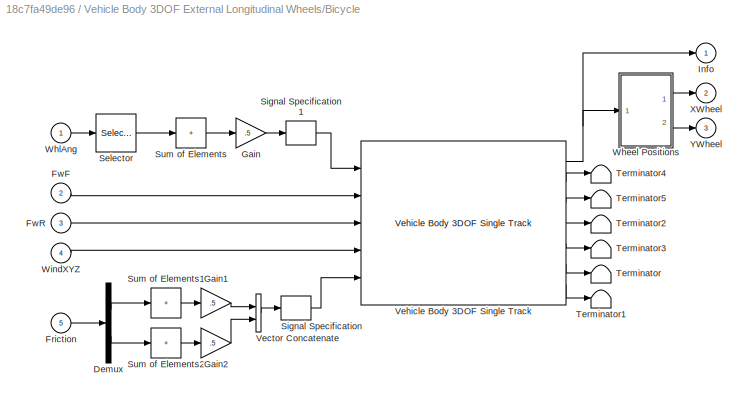
BLOCK [SubSystem] Vehicle Body 3DOF External Longitudinal Wheels/Bicycle
  Ports = [5, 3]
  RequestExecContextInheritance = off
  VariantControl = 0
BLOCK [Outport] Vehicle Body 3DOF External Longitudinal Wheels/Bicycle/ Info
  VectorParamsAs1DForOutWhenUnconnected = off
BLOCK [Outport] Vehicle Body 3DOF External Longitudinal Wheels/Bicycle/ YWheel
  Port = 3
  Unit = m
  VectorParamsAs1DForOutWhenUnconnected = off
BLOCK [Demux] Vehicle Body 3DOF External Longitudinal Wheels/Bicycle/Demux
  Outputs = [2,2]
  Ports = [1, 2]
BLOCK [Inport] Vehicle Body 3DOF External Longitudinal Wheels/Bicycle/Friction
  Port = 5
BLOCK [Inport] Vehicle Body 3DOF External Longitudinal Wheels/Bicycle/FwF 
  Port = 2
BLOCK [Inport] Vehicle Body 3DOF External Longitudinal Wheels/Bicycle/FwR 
  Port = 3
BLOCK [Gain] Vehicle Body 3DOF External Longitudinal Wheels/Bicycle/Gain
  Gain = .5
BLOCK [Gain] Vehicle Body 3DOF External Longitudinal Wheels/Bicycle/Gain1
  Gain = .5
BLOCK [Gain] Vehicle Body 3DOF External Longitudinal Wheels/Bicycle/Gain2
  Gain = .5
BLOCK [Selector] Vehicle Body 3DOF External Longitudinal Wheels/Bicycle/Selector
  IndexOptions = Index vector (dialog)
  Indices = [1 2]
  InputPortWidth = 4
  OutputSizes = 1
  Ports = [1, 1]
BLOCK [SignalSpecification] Vehicle Body 3DOF External Longitudinal Wheels/Bicycle/Signal Specification
  Unit = 1
BLOCK [SignalSpecification] Vehicle Body 3DOF External Longitudinal Wheels/Bicycle/Signal Specification1
  Unit = rad
BLOCK [Sum] Vehicle Body 3DOF External Longitudinal Wheels/Bicycle/Sum of Elements
  IconShape = rectangular
  Inputs = +
  Ports = [1, 1]
BLOCK [Sum] Vehicle Body 3DOF External Longitudinal Wheels/Bicycle/Sum of Elements1
  IconShape = rectangular
  Inputs = +
  Ports = [1, 1]
BLOCK [Sum] Vehicle Body 3DOF External Longitudinal Wheels/Bicycle/Sum of Elements2
  IconShape = rectangular
  Inputs = +
  Ports = [1, 1]
BLOCK [Terminator] Vehicle Body 3DOF External Longitudinal Wheels/Bicycle/Terminator
BLOCK [Terminator] Vehicle Body 3DOF External Longitudinal Wheels/Bicycle/Terminator1
BLOCK [Terminator] Vehicle Body 3DOF External Longitudinal Wheels/Bicycle/Terminator2
BLOCK [Terminator] Vehicle Body 3DOF External Longitudinal Wheels/Bicycle/Terminator3
BLOCK [Terminator] Vehicle Body 3DOF External Longitudinal Wheels/Bicycle/Terminator4
BLOCK [Terminator] Vehicle Body 3DOF External Longitudinal Wheels/Bicycle/Terminator5
BLOCK [Concatenate] Vehicle Body 3DOF External Longitudinal Wheels/Bicycle/Vector Concatenate
  Ports = [2, 1]
BLOCK [Reference] Vehicle Body 3DOF External Longitudinal Wheels/Bicycle/Vehicle Body 3DOF Single Track  REF=autolibshared/Vehicle Body 3DOF Single Track
  Ports = [5, 7]
  SourceBlock = autolibshared/Vehicle Body 3DOF Single Track
  SourceProductBaseCode = PW,MT,UV,VE,VP
  SourceType = Vehicle Body 3DOF Lateral
BLOCK [SubSystem] Vehicle Body 3DOF External Longitudinal Wheels/Bicycle/Wheel Positions
  Ports = [1, 2]
  RequestExecContextInheritance = off
BLOCK [BusSelector] Vehicle Body 3DOF External Longitudinal Wheels/Bicycle/Wheel Positions/Bus Selector
  OutputSignals = InertFrm.FrntAxl.Disp.Y,InertFrm.RearAxl.Disp.Y
  Ports = [1, 2]
BLOCK [BusSelector] Vehicle Body 3DOF External Longitudinal Wheels/Bicycle/Wheel Positions/Bus Selector1
  OutputSignals = InertFrm.FrntAxl.Disp.X,InertFrm.RearAxl.Disp.X
  Ports = [1, 2]
BLOCK [Ground] Vehicle Body 3DOF External Longitudinal Wheels/Bicycle/Wheel Positions/Ground
BLOCK [Ground] Vehicle Body 3DOF External Longitudinal Wheels/Bicycle/Wheel Positions/Ground1
BLOCK [Inport] Vehicle Body 3DOF External Longitudinal Wheels/Bicycle/Wheel Positions/Info
BLOCK [Concatenate] Vehicle Body 3DOF External Longitudinal Wheels/Bicycle/Wheel Positions/Vector Concatenate1
  NumInputs = 4
  Ports = [4, 1]
BLOCK [Concatenate] Vehicle Body 3DOF External Longitudinal Wheels/Bicycle/Wheel Positions/Vector Concatenate2
  NumInputs = 4
  Ports = [4, 1]
BLOCK [Outport] Vehicle Body 3DOF External Longitudinal Wheels/Bicycle/Wheel Positions/XWheel
  PortDimensions = 4
  Unit = m
  VectorParamsAs1DForOutWhenUnconnected = off
BLOCK [Outport] Vehicle Body 3DOF External Longitudinal Wheels/Bicycle/Wheel Positions/YWheel
  Port = 2
  PortDimensions = 4
  Unit = m
  VectorParamsAs1DForOutWhenUnconnected = off
BLOCK [Inport] Vehicle Body 3DOF External Longitudinal Wheels/Bicycle/WhlAng
BLOCK [Inport] Vehicle Body 3DOF External Longitudinal Wheels/Bicycle/WindXYZ
  Port = 4
BLOCK [Outport] Vehicle Body 3DOF External Longitudinal Wheels/Bicycle/XWheel
  Port = 2
  Unit = m
  VectorParamsAs1DForOutWhenUnconnected = off
BLOCK [SubSystem] Vehicle Body 3DOF External Longitudinal Wheels/Dual
  Ports = [5, 3]
  RequestExecContextInheritance = off
  VariantControl = 1
BLOCK [Outport] Vehicle Body 3DOF External Longitudinal Wheels/Dual/ Info
  VectorParamsAs1DForOutWhenUnconnected = off
BLOCK [Outport] Vehicle Body 3DOF External Longitudinal Wheels/Dual/ XWheel
  Port = 2
  VectorParamsAs1DForOutWhenUnconnected = off
BLOCK [Outport] Vehicle Body 3DOF External Longitudinal Wheels/Dual/ YWheel
  Port = 3
  VectorParamsAs1DForOutWhenUnconnected = off
BLOCK [Inport] Vehicle Body 3DOF External Longitudinal Wheels/Dual/Friction
  Port = 5
BLOCK [Inport] Vehicle Body 3DOF External Longitudinal Wheels/Dual/FwF 
  Port = 2
BLOCK [Inport] Vehicle Body 3DOF External Longitudinal Wheels/Dual/FwR 
  Port = 3
BLOCK [Reshape] Vehicle Body 3DOF External Longitudinal Wheels/Dual/Reshape
  OutputDimensionality = Customize
  OutputDimensions = [2,2]
  Ports = [1, 1]
BLOCK [Selector] Vehicle Body 3DOF External Longitudinal Wheels/Dual/Selector
  IndexOptions = Index vector (dialog)
  Indices = [1 2]
  InputPortWidth = 4
  OutputSizes = 1
  Ports = [1, 1]
BLOCK [SignalSpecification] Vehicle Body 3DOF External Longitudinal Wheels/Dual/Signal Specification
  Unit = 1
BLOCK [Terminator] Vehicle Body 3DOF External Longitudinal Wheels/Dual/Terminator
BLOCK [Terminator] Vehicle Body 3DOF External Longitudinal Wheels/Dual/Terminator1
BLOCK [Terminator] Vehicle Body 3DOF External Longitudinal Wheels/Dual/Terminator2
BLOCK [Terminator] Vehicle Body 3DOF External Longitudinal Wheels/Dual/Terminator3
BLOCK [Terminator] Vehicle Body 3DOF External Longitudinal Wheels/Dual/Terminator4
BLOCK [Terminator] Vehicle Body 3DOF External Longitudinal Wheels/Dual/Terminator5
BLOCK [Reference] Vehicle Body 3DOF External Longitudinal Wheels/Dual/Vehicle Body 3DOF Dual Track  REF=autolibshared/Vehicle Body 3DOF Single Track
  Ports = [5, 7]
  SourceBlock = autolibshared/Vehicle Body 3DOF Single Track
  SourceProductBaseCode = PW,MT,UV,VE,VP
  SourceType = Vehicle Body 3DOF Lateral
BLOCK [SubSystem] Vehicle Body 3DOF External Longitudinal Wheels/Dual/Wheel Positions
  Ports = [1, 2]
  RequestExecContextInheritance = off
BLOCK [BusSelector] Vehicle Body 3DOF External Longitudinal Wheels/Dual/Wheel Positions/Bus Selector
  OutputSignals = InertFrm.FrntAxl.Lft.Disp.Y,InertFrm.FrntAxl.Rght.Disp.Y,InertFrm.RearAxl.Lft.Disp.Y,InertFrm.RearAxl.Rght.Disp.Y
  Ports = [1, 4]
BLOCK [BusSelector] Vehicle Body 3DOF External Longitudinal Wheels/Dual/Wheel Positions/Bus Selector1
  OutputSignals = InertFrm.FrntAxl.Lft.Disp.X,InertFrm.FrntAxl.Rght.Disp.X,InertFrm.RearAxl.Lft.Disp.X,InertFrm.RearAxl.Rght.Disp.X
  Ports = [1, 4]
BLOCK [Inport] Vehicle Body 3DOF External Longitudinal Wheels/Dual/Wheel Positions/Info
BLOCK [Concatenate] Vehicle Body 3DOF External Longitudinal Wheels/Dual/Wheel Positions/Vector Concatenate1
  NumInputs = 4
  Ports = [4, 1]
BLOCK [Concatenate] Vehicle Body 3DOF External Longitudinal Wheels/Dual/Wheel Positions/Vector Concatenate2
  NumInputs = 4
  Ports = [4, 1]
BLOCK [Outport] Vehicle Body 3DOF External Longitudinal Wheels/Dual/Wheel Positions/XWheel
  PortDimensions = 4
  Unit = m
  VectorParamsAs1DForOutWhenUnconnected = off
BLOCK [Outport] Vehicle Body 3DOF External Longitudinal Wheels/Dual/Wheel Positions/YWheel
  Port = 2
  PortDimensions = 4
  Unit = m
  VectorParamsAs1DForOutWhenUnconnected = off
BLOCK [Inport] Vehicle Body 3DOF External Longitudinal Wheels/Dual/WhlAng
BLOCK [Inport] Vehicle Body 3DOF External Longitudinal Wheels/Dual/WindXYZ
  Port = 4
BLOCK [Inport] Vehicle Body 3DOF External Longitudinal Wheels/Friction
  Port = 5
  PortDimensions = 4
  Unit = 1
BLOCK [Inport] Vehicle Body 3DOF External Longitudinal Wheels/FwF 
  Port = 2
BLOCK [Inport] Vehicle Body 3DOF External Longitudinal Wheels/FwR 
  Port = 3
BLOCK [Inport] Vehicle Body 3DOF External Longitudinal Wheels/WhlAng
BLOCK [Inport] Vehicle Body 3DOF External Longitudinal Wheels/WindXYZ
  Port = 4
BLOCK [Inport] WhlAng
  Port = 4
  PortDimensions = 4
  Unit = rad
BLOCK [Inport] WindXYZ
  Port = 3
  PortDimensions = 3
BLOCK [Outport] XWheel
  Port = 13
  VectorParamsAs1DForOutWhenUnconnected = off
BLOCK [Outport] YWheel
  Port = 14
  VectorParamsAs1DForOutWhenUnconnected = off
BLOCK [Outport] angles
  Port = 4
  Unit = rad
  VectorParamsAs1DForOutWhenUnconnected = off
BLOCK [Outport] dzWheel
  Port = 15
  VectorParamsAs1DForOutWhenUnconnected = off
BLOCK [Outport] pqr
  Port = 5
  VectorParamsAs1DForOutWhenUnconnected = off
BLOCK [Outport] pqrdot
  Port = 16
  VectorParamsAs1DForOutWhenUnconnected = off
ANNOTATION (root): <copyright redacted>
ANNOTATION Longitudinal Wheels 4DOF/Axle Forces: 1) Add Subsystem or Model blocks as valid variant choices. 2) You cannot connect blocks at this level. At simulation, connectivity is automatically determined, based on the active variant and port name matching.
ANNOTATION Longitudinal Wheels 4DOF/Velocity and Vertical Load: 1) Add Subsystem or Model blocks as valid variant choices. 2) You cannot connect blocks at this level. At simulation, connectivity is automatically determined, based on the active variant and port name matching.
LINE AxlTrq:1 -> Longitudinal Wheels 4DOF:2
LINE BrkPrs:1 -> Longitudinal Wheels 4DOF:3
LINE Bus Selector10:1 -> Bus to Vector8:1
LINE Bus Selector1:1 -> Bus to Vector:1
LINE Bus Selector2:1 -> Bus to Vector1:1
LINE Bus Selector3:1 -> Bus to Vector2:1
LINE Bus Selector4:1 -> Bus to Vector3:1
LINE Bus Selector5:1 -> Bus to Vector4:1
LINE Bus Selector6:1 -> Bus to Vector5:1
LINE Bus Selector7:1 -> Bus to Vector6:1
LINE Bus Selector8:1 -> Beta:1
LINE Bus Selector9:1 -> Bus to Vector7:1
LINE Bus to Vector1:1 -> CgXYZdot:1
LINE Bus to Vector2:1 -> Cgaxyz:1
LINE Bus to Vector3:1 -> For 3D Visualization:1
LINE Bus to Vector4:1 -> pqr:1
LINE Bus to Vector5:1 -> For 3D Visualization:2
LINE Bus to Vector6:1 -> GeomXYZdot:1
LINE Bus to Vector7:1 -> Cgxyzdot:1
LINE Bus to Vector8:1 -> pqrdot:1
LINE Bus to Vector:1 -> CgXYZ:1
LINE For 3D Visualization:1 -> angles:1
LINE For 3D Visualization:2 -> GeomXYZ:1
NET Friction:1 -> Goto:1, Longitudinal Wheels 4DOF:5
LINE From1:1 -> For 3D Visualization:3
LINE From:1 -> Vehicle Body 3DOF External Longitudinal Wheels:5
NET Ground:1 -> Goto1:1, Longitudinal Wheels 4DOF:4
LINE Longitudinal Wheels 4DOF/AxlTrq:1 -> Longitudinal Wheels 4DOF/Veh2Tire:1
LINE Longitudinal Wheels 4DOF/Axle Forces/Bicycle/F:1 -> Longitudinal Wheels 4DOF/Axle Forces/Bicycle/Sum of Elements:1
LINE Longitudinal Wheels 4DOF/Axle Forces/Bicycle/R:1 -> Longitudinal Wheels 4DOF/Axle Forces/Bicycle/Sum of Elements1:1
LINE Longitudinal Wheels 4DOF/Axle Forces/Bicycle/Sum of Elements1:1 -> Longitudinal Wheels 4DOF/Axle Forces/Bicycle/RearAxlF:1
LINE Longitudinal Wheels 4DOF/Axle Forces/Bicycle/Sum of Elements:1 -> Longitudinal Wheels 4DOF/Axle Forces/Bicycle/FrntAxlF:1
LINE Longitudinal Wheels 4DOF/Axle Forces/Dual/F:1 -> Longitudinal Wheels 4DOF/Axle Forces/Dual/FrntAxlF:1
LINE Longitudinal Wheels 4DOF/Axle Forces/Dual/R:1 -> Longitudinal Wheels 4DOF/Axle Forces/Dual/RearAxlF:1
LINE Longitudinal Wheels 4DOF/Axle Forces:1 -> Longitudinal Wheels 4DOF/FrntAxlF:1
LINE Longitudinal Wheels 4DOF/Axle Forces:2 -> Longitudinal Wheels 4DOF/RearAxlF:1
LINE Longitudinal Wheels 4DOF/BrkPrs:1 -> Longitudinal Wheels 4DOF/Veh2Tire:2
LINE Longitudinal Wheels 4DOF/Bus Selector5:1 -> Longitudinal Wheels 4DOF/Veh2Tire:3
NET Longitudinal Wheels 4DOF/Constant3:1 -> Longitudinal Wheels 4DOF/Tires:6, Longitudinal Wheels 4DOF/Wheel Angles:2
LINE Longitudinal Wheels 4DOF/Constant:1 -> Longitudinal Wheels 4DOF/Tires:7
LINE Longitudinal Wheels 4DOF/Gnd:1 -> Longitudinal Wheels 4DOF/Tires:10
LINE Longitudinal Wheels 4DOF/Tire2Veh/Bus Selector7:1 -> Longitudinal Wheels 4DOF/Tire2Veh/Omega:1
LINE Longitudinal Wheels 4DOF/Tire2Veh/Bus Selector7:2 -> Longitudinal Wheels 4DOF/Tire2Veh/Dead Zone2:1
LINE Longitudinal Wheels 4DOF/Tire2Veh/Bus Selector7:3 -> Longitudinal Wheels 4DOF/Tire2Veh/Re:1
LINE Longitudinal Wheels 4DOF/Tire2Veh/Bus Selector7:4 -> Longitudinal Wheels 4DOF/Tire2Veh/Unary Minus1:1
LINE Longitudinal Wheels 4DOF/Tire2Veh/Bus Selector7:5 -> Longitudinal Wheels 4DOF/Tire2Veh/Unary Minus2:1
LINE Longitudinal Wheels 4DOF/Tire2Veh/Bus Selector7:6 -> Longitudinal Wheels 4DOF/Tire2Veh/Kappa:1
LINE Longitudinal Wheels 4DOF/Tire2Veh/Bus Selector7:7 -> Longitudinal Wheels 4DOF/Tire2Veh/Alpha:1
LINE Longitudinal Wheels 4DOF/Tire2Veh/Dead Zone2:1 -> Longitudinal Wheels 4DOF/Tire2Veh/Demux:1
LINE Longitudinal Wheels 4DOF/Tire2Veh/Demux:1 -> Longitudinal Wheels 4DOF/Tire2Veh/FwF:1
LINE Longitudinal Wheels 4DOF/Tire2Veh/Demux:2 -> Longitudinal Wheels 4DOF/Tire2Veh/FwR:1
LINE Longitudinal Wheels 4DOF/Tire2Veh/Unary Minus1:1 -> Longitudinal Wheels 4DOF/Tire2Veh/z:1
LINE Longitudinal Wheels 4DOF/Tire2Veh/Unary Minus2:1 -> Longitudinal Wheels 4DOF/Tire2Veh/zdot:1
LINE Longitudinal Wheels 4DOF/Tire2Veh/Wheel:1 -> Longitudinal Wheels 4DOF/Tire2Veh/Bus Selector7:1
LINE Longitudinal Wheels 4DOF/Tire2Veh:1 -> Longitudinal Wheels 4DOF/Axle Forces:1
LINE Longitudinal Wheels 4DOF/Tire2Veh:2 -> Longitudinal Wheels 4DOF/Axle Forces:2
LINE Longitudinal Wheels 4DOF/Tire2Veh:3 -> Longitudinal Wheels 4DOF/zAxle:1
LINE Longitudinal Wheels 4DOF/Tire2Veh:4 -> Longitudinal Wheels 4DOF/Omega:1
LINE Longitudinal Wheels 4DOF/Tire2Veh:5 -> Longitudinal Wheels 4DOF/Kappa:1
LINE Longitudinal Wheels 4DOF/Tire2Veh:6 -> Longitudinal Wheels 4DOF/Alpha:1
LINE Longitudinal Wheels 4DOF/Tires/AxlTrq:1 -> Longitudinal Wheels 4DOF/Tires/Subsystem:1
LINE Longitudinal Wheels 4DOF/Tires/BrkPrs:1 -> Longitudinal Wheels 4DOF/Tires/Subsystem:2
LINE Longitudinal Wheels 4DOF/Tires/Bus Creator:1 -> Longitudinal Wheels 4DOF/Tires/Wheel:1
LINE Longitudinal Wheels 4DOF/Tires/Camber:1 -> Longitudinal Wheels 4DOF/Tires/Terminator2:1
LINE Longitudinal Wheels 4DOF/Tires/Fy:1 -> Longitudinal Wheels 4DOF/Tires/Bus Creator:3
LINE Longitudinal Wheels 4DOF/Tires/Fz:1 -> Longitudinal Wheels 4DOF/Tires/Subsystem:5
LINE Longitudinal Wheels 4DOF/Tires/Gnd:1 -> Longitudinal Wheels 4DOF/Tires/Subsystem:7
LINE Longitudinal Wheels 4DOF/Tires/Mx:1 -> Longitudinal Wheels 4DOF/Tires/Bus Creator:5
LINE Longitudinal Wheels 4DOF/Tires/Mz1:1 -> Longitudinal Wheels 4DOF/Tires/Bus Creator:12
LINE Longitudinal Wheels 4DOF/Tires/Mz:1 -> Longitudinal Wheels 4DOF/Tires/Bus Creator:7
LINE Longitudinal Wheels 4DOF/Tires/Subsystem/AxlTrq:1 -> Longitudinal Wheels 4DOF/Tires/Subsystem/Longitudinal Wheel - Disk Brake:2
LINE Longitudinal Wheels 4DOF/Tires/Subsystem/BrkPrs:1 -> Longitudinal Wheels 4DOF/Tires/Subsystem/Longitudinal Wheel - Disk Brake:1
LINE Longitudinal Wheels 4DOF/Tires/Subsystem/Bus Selector:1 -> Longitudinal Wheels 4DOF/Tires/Subsystem/Omega:1
LINE Longitudinal Wheels 4DOF/Tires/Subsystem/Bus Selector:2 -> Longitudinal Wheels 4DOF/Tires/Subsystem/Fx:1
LINE Longitudinal Wheels 4DOF/Tires/Subsystem/Bus Selector:3 -> Longitudinal Wheels 4DOF/Tires/Subsystem/FzOut:1
LINE Longitudinal Wheels 4DOF/Tires/Subsystem/Bus Selector:4 -> Longitudinal Wheels 4DOF/Tires/Subsystem/My:1
LINE Longitudinal Wheels 4DOF/Tires/Subsystem/Bus Selector:5 -> Longitudinal Wheels 4DOF/Tires/Subsystem/Re:1
LINE Longitudinal Wheels 4DOF/Tires/Subsystem/Bus Selector:6 -> Longitudinal Wheels 4DOF/Tires/Subsystem/z:1
LINE Longitudinal Wheels 4DOF/Tires/Subsystem/Bus Selector:7 -> Longitudinal Wheels 4DOF/Tires/Subsystem/zdot:1
LINE Longitudinal Wheels 4DOF/Tires/Subsystem/Bus Selector:8 -> Longitudinal Wheels 4DOF/Tires/Subsystem/Kappa:1
LINE Longitudinal Wheels 4DOF/Tires/Subsystem/Fz:1 -> Longitudinal Wheels 4DOF/Tires/Subsystem/Longitudinal Wheel - Disk Brake:4
LINE Longitudinal Wheels 4DOF/Tires/Subsystem/Gnd:1 -> Longitudinal Wheels 4DOF/Tires/Subsystem/Longitudinal Wheel - Disk Brake:6
LINE Longitudinal Wheels 4DOF/Tires/Subsystem/Longitudinal Wheel - Disk Brake:1 -> Longitudinal Wheels 4DOF/Tires/Subsystem/Bus Selector:1
LINE Longitudinal Wheels 4DOF/Tires/Subsystem/Longitudinal Wheel - Disk Brake:2 -> Longitudinal Wheels 4DOF/Tires/Subsystem/Terminator19:1
LINE Longitudinal Wheels 4DOF/Tires/Subsystem/Longitudinal Wheel - Disk Brake:3 -> Longitudinal Wheels 4DOF/Tires/Subsystem/Terminator18:1
LINE Longitudinal Wheels 4DOF/Tires/Subsystem/TirePrs:1 -> Longitudinal Wheels 4DOF/Tires/Subsystem/Longitudinal Wheel - Disk Brake:7
LINE Longitudinal Wheels 4DOF/Tires/Subsystem/Vx:1 -> Longitudinal Wheels 4DOF/Tires/Subsystem/Longitudinal Wheel - Disk Brake:3
LINE Longitudinal Wheels 4DOF/Tires/Subsystem/lam_mu:1 -> Longitudinal Wheels 4DOF/Tires/Subsystem/Longitudinal Wheel - Disk Brake:5
LINE Longitudinal Wheels 4DOF/Tires/Subsystem:1 -> Longitudinal Wheels 4DOF/Tires/Bus Creator:1
LINE Longitudinal Wheels 4DOF/Tires/Subsystem:2 -> Longitudinal Wheels 4DOF/Tires/Bus Creator:2
LINE Longitudinal Wheels 4DOF/Tires/Subsystem:3 -> Longitudinal Wheels 4DOF/Tires/Bus Creator:4
LINE Longitudinal Wheels 4DOF/Tires/Subsystem:4 -> Longitudinal Wheels 4DOF/Tires/Bus Creator:6
LINE Longitudinal Wheels 4DOF/Tires/Subsystem:5 -> Longitudinal Wheels 4DOF/Tires/Bus Creator:8
LINE Longitudinal Wheels 4DOF/Tires/Subsystem:6 -> Longitudinal Wheels 4DOF/Tires/Bus Creator:9
LINE Longitudinal Wheels 4DOF/Tires/Subsystem:7 -> Longitudinal Wheels 4DOF/Tires/Bus Creator:10
LINE Longitudinal Wheels 4DOF/Tires/Subsystem:8 -> Longitudinal Wheels 4DOF/Tires/Bus Creator:11
LINE Longitudinal Wheels 4DOF/Tires/TirePrs:1 -> Longitudinal Wheels 4DOF/Tires/Subsystem:4
LINE Longitudinal Wheels 4DOF/Tires/Vx:1 -> Longitudinal Wheels 4DOF/Tires/Subsystem:3
LINE Longitudinal Wheels 4DOF/Tires/Vy:1 -> Longitudinal Wheels 4DOF/Tires/Terminator1:1
LINE Longitudinal Wheels 4DOF/Tires/lam_mu:1 -> Longitudinal Wheels 4DOF/Tires/Subsystem:6
LINE Longitudinal Wheels 4DOF/Tires/r:1 -> Longitudinal Wheels 4DOF/Tires/Terminator3:1
LINE Longitudinal Wheels 4DOF/Tires:1 -> Longitudinal Wheels 4DOF/Tire2Veh:1
LINE Longitudinal Wheels 4DOF/Veh2Tire/AxlTrq:1 -> Longitudinal Wheels 4DOF/Veh2Tire/Reshape4:1
LINE Longitudinal Wheels 4DOF/Veh2Tire/BrkPrs:1 -> Longitudinal Wheels 4DOF/Veh2Tire/Reshape3:1
LINE Longitudinal Wheels 4DOF/Veh2Tire/Reshape3:1 -> Longitudinal Wheels 4DOF/Veh2Tire/P:1
LINE Longitudinal Wheels 4DOF/Veh2Tire/Reshape4:1 -> Longitudinal Wheels 4DOF/Veh2Tire/T:1
LINE Longitudinal Wheels 4DOF/Veh2Tire/Unary Minus:1 -> Longitudinal Wheels 4DOF/Veh2Tire/psidot:1
LINE Longitudinal Wheels 4DOF/Veh2Tire/VehVel:1 -> Longitudinal Wheels 4DOF/Veh2Tire/Wheel to Body Transform:1
LINE Longitudinal Wheels 4DOF/Veh2Tire/Wheel to Body Transform/Demux1:1 -> Longitudinal Wheels 4DOF/Veh2Tire/Wheel to Body Transform/xdotWheel:1
LINE Longitudinal Wheels 4DOF/Veh2Tire/Wheel to Body Transform/Demux1:2 -> Longitudinal Wheels 4DOF/Veh2Tire/Wheel to Body Transform/ydotWheel:1
LINE Longitudinal Wheels 4DOF/Veh2Tire/Wheel to Body Transform/Demux1:3 -> Longitudinal Wheels 4DOF/Veh2Tire/Wheel to Body Transform/zdotWheel:1
LINE Longitudinal Wheels 4DOF/Veh2Tire/Wheel to Body Transform/Divide1:1 -> Longitudinal Wheels 4DOF/Veh2Tire/Wheel to Body Transform/Demux1:1
LINE Longitudinal Wheels 4DOF/Veh2Tire/Wheel to Body Transform/Rotation Angles to Direction Cosine Matrix:1 -> Longitudinal Wheels 4DOF/Veh2Tire/Wheel to Body Transform/Divide1:1
LINE Longitudinal Wheels 4DOF/Veh2Tire/Wheel to Body Transform/Selector:1 -> Longitudinal Wheels 4DOF/Veh2Tire/Wheel to Body Transform/Rotation Angles to Direction Cosine Matrix:1
LINE Longitudinal Wheels 4DOF/Veh2Tire/Wheel to Body Transform/VelVeh:1 -> Longitudinal Wheels 4DOF/Veh2Tire/Wheel to Body Transform/Divide1:2
LINE Longitudinal Wheels 4DOF/Veh2Tire/Wheel to Body Transform/WhlAng:1 -> Longitudinal Wheels 4DOF/Veh2Tire/Wheel to Body Transform/Selector:1
LINE Longitudinal Wheels 4DOF/Veh2Tire/Wheel to Body Transform:1 -> Longitudinal Wheels 4DOF/Veh2Tire/xdotAxle:1
LINE Longitudinal Wheels 4DOF/Veh2Tire/Wheel to Body Transform:2 -> Longitudinal Wheels 4DOF/Veh2Tire/ydotAxle:1
LINE Longitudinal Wheels 4DOF/Veh2Tire/Wheel to Body Transform:3 -> Longitudinal Wheels 4DOF/Veh2Tire/zdotAxle:1
LINE Longitudinal Wheels 4DOF/Veh2Tire/WhlAng:1 -> Longitudinal Wheels 4DOF/Veh2Tire/Wheel to Body Transform:2
LINE Longitudinal Wheels 4DOF/Veh2Tire/r:1 -> Longitudinal Wheels 4DOF/Veh2Tire/Unary Minus:1
LINE Longitudinal Wheels 4DOF/Veh2Tire:1 -> Longitudinal Wheels 4DOF/Tires:1
LINE Longitudinal Wheels 4DOF/Veh2Tire:2 -> Longitudinal Wheels 4DOF/Tires:2
LINE Longitudinal Wheels 4DOF/Veh2Tire:3 -> Longitudinal Wheels 4DOF/Tires:3
LINE Longitudinal Wheels 4DOF/Veh2Tire:4 -> Longitudinal Wheels 4DOF/Tires:4
LINE Longitudinal Wheels 4DOF/Veh2Tire:5 -> Longitudinal Wheels 4DOF/Tires:5
LINE Longitudinal Wheels 4DOF/Veh2Tire:6 -> Longitudinal Wheels 4DOF/Terminator2:1
NET Longitudinal Wheels 4DOF/VehFdbk:1 -> Longitudinal Wheels 4DOF/Bus Selector5:1, Longitudinal Wheels 4DOF/Velocity and Vertical Load:1
NET Longitudinal Wheels 4DOF/Velocity and Vertical Load/Bicycle/Bicycle Fz/Bus Selector6:1 -> Longitudinal Wheels 4DOF/Velocity and Vertical Load/Bicycle/Bicycle Fz/Mux5:1, Longitudinal Wheels 4DOF/Velocity and Vertical Load/Bicycle/Bicycle Fz/Mux5:2
NET Longitudinal Wheels 4DOF/Velocity and Vertical Load/Bicycle/Bicycle Fz/Bus Selector6:2 -> Longitudinal Wheels 4DOF/Velocity and Vertical Load/Bicycle/Bicycle Fz/Mux5:3, Longitudinal Wheels 4DOF/Velocity and Vertical Load/Bicycle/Bicycle Fz/Mux5:4
LINE Longitudinal Wheels 4DOF/Velocity and Vertical Load/Bicycle/Bicycle Fz/Cont LPF:1 -> Longitudinal Wheels 4DOF/Velocity and Vertical Load/Bicycle/Bicycle Fz/Out1:1
LINE Longitudinal Wheels 4DOF/Velocity and Vertical Load/Bicycle/Bicycle Fz/In1:1 -> Longitudinal Wheels 4DOF/Velocity and Vertical Load/Bicycle/Bicycle Fz/Bus Selector6:1
LINE Longitudinal Wheels 4DOF/Velocity and Vertical Load/Bicycle/Bicycle Fz/Mux5:1 -> Longitudinal Wheels 4DOF/Velocity and Vertical Load/Bicycle/Bicycle Fz/Saturation:1
LINE Longitudinal Wheels 4DOF/Velocity and Vertical Load/Bicycle/Bicycle Fz/Saturation:1 -> Longitudinal Wheels 4DOF/Velocity and Vertical Load/Bicycle/Bicycle Fz/Cont LPF:1
LINE Longitudinal Wheels 4DOF/Velocity and Vertical Load/Bicycle/Bicycle Fz:1 -> Longitudinal Wheels 4DOF/Velocity and Vertical Load/Bicycle/Fz:1
LINE Longitudinal Wheels 4DOF/Velocity and Vertical Load/Bicycle/Bicycle V/Bus Selector3:1 -> Longitudinal Wheels 4DOF/Velocity and Vertical Load/Bicycle/Bicycle V/Bus to Vector3:1
LINE Longitudinal Wheels 4DOF/Velocity and Vertical Load/Bicycle/Bicycle V/Bus Selector:1 -> Longitudinal Wheels 4DOF/Velocity and Vertical Load/Bicycle/Bicycle V/Bus to Vector1:1
NET Longitudinal Wheels 4DOF/Velocity and Vertical Load/Bicycle/Bicycle V/Bus to Vector1:1 -> Longitudinal Wheels 4DOF/Velocity and Vertical Load/Bicycle/Bicycle V/Vector Concatenate1:1, Longitudinal Wheels 4DOF/Velocity and Vertical Load/Bicycle/Bicycle V/Vector Concatenate1:2
NET Longitudinal Wheels 4DOF/Velocity and Vertical Load/Bicycle/Bicycle V/Bus to Vector3:1 -> Longitudinal Wheels 4DOF/Velocity and Vertical Load/Bicycle/Bicycle V/Vector Concatenate1:3, Longitudinal Wheels 4DOF/Velocity and Vertical Load/Bicycle/Bicycle V/Vector Concatenate1:4
NET Longitudinal Wheels 4DOF/Velocity and Vertical Load/Bicycle/Bicycle V/In1:1 -> Longitudinal Wheels 4DOF/Velocity and Vertical Load/Bicycle/Bicycle V/Bus Selector3:1, Longitudinal Wheels 4DOF/Velocity and Vertical Load/Bicycle/Bicycle V/Bus Selector:1
LINE Longitudinal Wheels 4DOF/Velocity and Vertical Load/Bicycle/Bicycle V/Vector Concatenate1:1 -> Longitudinal Wheels 4DOF/Velocity and Vertical Load/Bicycle/Bicycle V/Out1:1
LINE Longitudinal Wheels 4DOF/Velocity and Vertical Load/Bicycle/Bicycle V:1 -> Longitudinal Wheels 4DOF/Velocity and Vertical Load/Bicycle/VehVel:1
NET Longitudinal Wheels 4DOF/Velocity and Vertical Load/Bicycle/VehFdbk:1 -> Longitudinal Wheels 4DOF/Velocity and Vertical Load/Bicycle/Bicycle Fz:1, Longitudinal Wheels 4DOF/Velocity and Vertical Load/Bicycle/Bicycle V:1
LINE Longitudinal Wheels 4DOF/Velocity and Vertical Load/Dual/Dual Fz/Bus Selector6:1 -> Longitudinal Wheels 4DOF/Velocity and Vertical Load/Dual/Dual Fz/Vector Concatenate:1
LINE Longitudinal Wheels 4DOF/Velocity and Vertical Load/Dual/Dual Fz/Bus Selector6:2 -> Longitudinal Wheels 4DOF/Velocity and Vertical Load/Dual/Dual Fz/Vector Concatenate:2
LINE Longitudinal Wheels 4DOF/Velocity and Vertical Load/Dual/Dual Fz/Bus Selector6:3 -> Longitudinal Wheels 4DOF/Velocity and Vertical Load/Dual/Dual Fz/Vector Concatenate:3
LINE Longitudinal Wheels 4DOF/Velocity and Vertical Load/Dual/Dual Fz/Bus Selector6:4 -> Longitudinal Wheels 4DOF/Velocity and Vertical Load/Dual/Dual Fz/Vector Concatenate:4
LINE Longitudinal Wheels 4DOF/Velocity and Vertical Load/Dual/Dual Fz/Cont LPF:1 -> Longitudinal Wheels 4DOF/Velocity and Vertical Load/Dual/Dual Fz/Out1:1
LINE Longitudinal Wheels 4DOF/Velocity and Vertical Load/Dual/Dual Fz/In1:1 -> Longitudinal Wheels 4DOF/Velocity and Vertical Load/Dual/Dual Fz/Bus Selector6:1
LINE Longitudinal Wheels 4DOF/Velocity and Vertical Load/Dual/Dual Fz/Saturation:1 -> Longitudinal Wheels 4DOF/Velocity and Vertical Load/Dual/Dual Fz/Cont LPF:1
LINE Longitudinal Wheels 4DOF/Velocity and Vertical Load/Dual/Dual Fz/Vector Concatenate:1 -> Longitudinal Wheels 4DOF/Velocity and Vertical Load/Dual/Dual Fz/Saturation:1
LINE Longitudinal Wheels 4DOF/Velocity and Vertical Load/Dual/Dual Fz:1 -> Longitudinal Wheels 4DOF/Velocity and Vertical Load/Dual/Fz:1
LINE Longitudinal Wheels 4DOF/Velocity and Vertical Load/Dual/Dual V/Bus Selector1:1 -> Longitudinal Wheels 4DOF/Velocity and Vertical Load/Dual/Dual V/Bus to Vector5:1
LINE Longitudinal Wheels 4DOF/Velocity and Vertical Load/Dual/Dual V/Bus Selector2:1 -> Longitudinal Wheels 4DOF/Velocity and Vertical Load/Dual/Dual V/Bus to Vector6:1
LINE Longitudinal Wheels 4DOF/Velocity and Vertical Load/Dual/Dual V/Bus Selector4:1 -> Longitudinal Wheels 4DOF/Velocity and Vertical Load/Dual/Dual V/Bus to Vector7:1
LINE Longitudinal Wheels 4DOF/Velocity and Vertical Load/Dual/Dual V/Bus Selector5:1 -> Longitudinal Wheels 4DOF/Velocity and Vertical Load/Dual/Dual V/Bus to Vector8:1
LINE Longitudinal Wheels 4DOF/Velocity and Vertical Load/Dual/Dual V/Bus to Vector5:1 -> Longitudinal Wheels 4DOF/Velocity and Vertical Load/Dual/Dual V/Vector Concatenate2:1
LINE Longitudinal Wheels 4DOF/Velocity and Vertical Load/Dual/Dual V/Bus to Vector6:1 -> Longitudinal Wheels 4DOF/Velocity and Vertical Load/Dual/Dual V/Vector Concatenate2:2
LINE Longitudinal Wheels 4DOF/Velocity and Vertical Load/Dual/Dual V/Bus to Vector7:1 -> Longitudinal Wheels 4DOF/Velocity and Vertical Load/Dual/Dual V/Vector Concatenate2:3
LINE Longitudinal Wheels 4DOF/Velocity and Vertical Load/Dual/Dual V/Bus to Vector8:1 -> Longitudinal Wheels 4DOF/Velocity and Vertical Load/Dual/Dual V/Vector Concatenate2:4
NET Longitudinal Wheels 4DOF/Velocity and Vertical Load/Dual/Dual V/In1:1 -> Longitudinal Wheels 4DOF/Velocity and Vertical Load/Dual/Dual V/Bus Selector1:1, Longitudinal Wheels 4DOF/Velocity and Vertical Load/Dual/Dual V/Bus Selector2:1, Longitudinal Wheels 4DOF/Velocity and Vertical Load/Dual/Dual V/Bus Selector4:1, Longitudinal Wheels 4DOF/Velocity and Vertical Load/Dual/Dual V/Bus Selector5:1
LINE Longitudinal Wheels 4DOF/Velocity and Vertical Load/Dual/Dual V/Vector Concatenate2:1 -> Longitudinal Wheels 4DOF/Velocity and Vertical Load/Dual/Dual V/Out1:1
LINE Longitudinal Wheels 4DOF/Velocity and Vertical Load/Dual/Dual V:1 -> Longitudinal Wheels 4DOF/Velocity and Vertical Load/Dual/VehVel:1
NET Longitudinal Wheels 4DOF/Velocity and Vertical Load/Dual/VehFdbk:1 -> Longitudinal Wheels 4DOF/Velocity and Vertical Load/Dual/Dual Fz:1, Longitudinal Wheels 4DOF/Velocity and Vertical Load/Dual/Dual V:1
LINE Longitudinal Wheels 4DOF/Velocity and Vertical Load:1 -> Longitudinal Wheels 4DOF/Veh2Tire:4
NET Longitudinal Wheels 4DOF/Velocity and Vertical Load:2 -> Longitudinal Wheels 4DOF/Scope:1, Longitudinal Wheels 4DOF/Tires:8
LINE Longitudinal Wheels 4DOF/Wheel Angles/Add1:1 -> Longitudinal Wheels 4DOF/Wheel Angles/Demux:1
LINE Longitudinal Wheels 4DOF/Wheel Angles/Camber:1 -> Longitudinal Wheels 4DOF/Wheel Angles/Reshape2:1
LINE Longitudinal Wheels 4DOF/Wheel Angles/Constant2:1 -> Longitudinal Wheels 4DOF/Wheel Angles/Add1:2
LINE Longitudinal Wheels 4DOF/Wheel Angles/Constant3:1 -> Longitudinal Wheels 4DOF/Wheel Angles/Reshape1:1
LINE Longitudinal Wheels 4DOF/Wheel Angles/Demux1:1 -> Longitudinal Wheels 4DOF/Wheel Angles/Vector Concatenate4:1
LINE Longitudinal Wheels 4DOF/Wheel Angles/Demux1:2 -> Longitudinal Wheels 4DOF/Wheel Angles/Mux:1
LINE Longitudinal Wheels 4DOF/Wheel Angles/Demux1:3 -> Longitudinal Wheels 4DOF/Wheel Angles/Vector Concatenate4:3
LINE Longitudinal Wheels 4DOF/Wheel Angles/Demux1:4 -> Longitudinal Wheels 4DOF/Wheel Angles/Mux:2
LINE Longitudinal Wheels 4DOF/Wheel Angles/Demux:1 -> Longitudinal Wheels 4DOF/Wheel Angles/Vector Concatenate4:2
LINE Longitudinal Wheels 4DOF/Wheel Angles/Demux:2 -> Longitudinal Wheels 4DOF/Wheel Angles/Vector Concatenate4:4
LINE Longitudinal Wheels 4DOF/Wheel Angles/Mux:1 -> Longitudinal Wheels 4DOF/Wheel Angles/Add1:1
LINE Longitudinal Wheels 4DOF/Wheel Angles/Reshape1:1 -> Longitudinal Wheels 4DOF/Wheel Angles/Vector Concatenate3:1
LINE Longitudinal Wheels 4DOF/Wheel Angles/Reshape2:1 -> Longitudinal Wheels 4DOF/Wheel Angles/Vector Concatenate3:2
LINE Longitudinal Wheels 4DOF/Wheel Angles/Reshape:1 -> Longitudinal Wheels 4DOF/Wheel Angles/Vector Concatenate3:3
LINE Longitudinal Wheels 4DOF/Wheel Angles/Vector Concatenate3:1 -> Longitudinal Wheels 4DOF/Wheel Angles/WhlAngB:1
LINE Longitudinal Wheels 4DOF/Wheel Angles/Vector Concatenate4:1 -> Longitudinal Wheels 4DOF/Wheel Angles/Reshape:1
LINE Longitudinal Wheels 4DOF/Wheel Angles/WheelAng:1 -> Longitudinal Wheels 4DOF/Wheel Angles/Demux1:1
LINE Longitudinal Wheels 4DOF/Wheel Angles:1 -> Longitudinal Wheels 4DOF/Veh2Tire:5
LINE Longitudinal Wheels 4DOF/WhlAng:1 -> Longitudinal Wheels 4DOF/Wheel Angles:1
LINE Longitudinal Wheels 4DOF/lam_mu:1 -> Longitudinal Wheels 4DOF/Tires:9
LINE Longitudinal Wheels 4DOF:1 -> Vehicle Body 3DOF External Longitudinal Wheels:2
LINE Longitudinal Wheels 4DOF:2 -> Vehicle Body 3DOF External Longitudinal Wheels:3
LINE Longitudinal Wheels 4DOF:3 -> Omega:1
LINE Longitudinal Wheels 4DOF:4 -> Kappa:1
LINE Longitudinal Wheels 4DOF:5 -> Alpha:1
LINE Longitudinal Wheels 4DOF:6 -> dzWheel:1
LINE Vehicle Body 3DOF External Longitudinal Wheels/Bicycle/Demux:1 -> Vehicle Body 3DOF External Longitudinal Wheels/Bicycle/Sum of Elements1:1
LINE Vehicle Body 3DOF External Longitudinal Wheels/Bicycle/Demux:2 -> Vehicle Body 3DOF External Longitudinal Wheels/Bicycle/Sum of Elements2:1
LINE Vehicle Body 3DOF External Longitudinal Wheels/Bicycle/Friction:1 -> Vehicle Body 3DOF External Longitudinal Wheels/Bicycle/Demux:1
LINE Vehicle Body 3DOF External Longitudinal Wheels/Bicycle/FwF :1 -> Vehicle Body 3DOF External Longitudinal Wheels/Bicycle/Vehicle Body 3DOF Single Track:2
LINE Vehicle Body 3DOF External Longitudinal Wheels/Bicycle/FwR :1 -> Vehicle Body 3DOF External Longitudinal Wheels/Bicycle/Vehicle Body 3DOF Single Track:3
LINE Vehicle Body 3DOF External Longitudinal Wheels/Bicycle/Gain1:1 -> Vehicle Body 3DOF External Longitudinal Wheels/Bicycle/Vector Concatenate:1
LINE Vehicle Body 3DOF External Longitudinal Wheels/Bicycle/Gain2:1 -> Vehicle Body 3DOF External Longitudinal Wheels/Bicycle/Vector Concatenate:2
LINE Vehicle Body 3DOF External Longitudinal Wheels/Bicycle/Gain:1 -> Vehicle Body 3DOF External Longitudinal Wheels/Bicycle/Signal Specification1:1
LINE Vehicle Body 3DOF External Longitudinal Wheels/Bicycle/Selector:1 -> Vehicle Body 3DOF External Longitudinal Wheels/Bicycle/Sum of Elements:1
LINE Vehicle Body 3DOF External Longitudinal Wheels/Bicycle/Signal Specification1:1 -> Vehicle Body 3DOF External Longitudinal Wheels/Bicycle/Vehicle Body 3DOF Single Track:1
LINE Vehicle Body 3DOF External Longitudinal Wheels/Bicycle/Signal Specification:1 -> Vehicle Body 3DOF External Longitudinal Wheels/Bicycle/Vehicle Body 3DOF Single Track:5
LINE Vehicle Body 3DOF External Longitudinal Wheels/Bicycle/Sum of Elements1:1 -> Vehicle Body 3DOF External Longitudinal Wheels/Bicycle/Gain1:1
LINE Vehicle Body 3DOF External Longitudinal Wheels/Bicycle/Sum of Elements2:1 -> Vehicle Body 3DOF External Longitudinal Wheels/Bicycle/Gain2:1
LINE Vehicle Body 3DOF External Longitudinal Wheels/Bicycle/Sum of Elements:1 -> Vehicle Body 3DOF External Longitudinal Wheels/Bicycle/Gain:1
LINE Vehicle Body 3DOF External Longitudinal Wheels/Bicycle/Vector Concatenate:1 -> Vehicle Body 3DOF External Longitudinal Wheels/Bicycle/Signal Specification:1
NET Vehicle Body 3DOF External Longitudinal Wheels/Bicycle/Vehicle Body 3DOF Single Track:1 -> Vehicle Body 3DOF External Longitudinal Wheels/Bicycle/ Info:1, Vehicle Body 3DOF External Longitudinal Wheels/Bicycle/Wheel Positions:1
LINE Vehicle Body 3DOF External Longitudinal Wheels/Bicycle/Vehicle Body 3DOF Single Track:2 -> Vehicle Body 3DOF External Longitudinal Wheels/Bicycle/Terminator4:1
LINE Vehicle Body 3DOF External Longitudinal Wheels/Bicycle/Vehicle Body 3DOF Single Track:3 -> Vehicle Body 3DOF External Longitudinal Wheels/Bicycle/Terminator5:1
LINE Vehicle Body 3DOF External Longitudinal Wheels/Bicycle/Vehicle Body 3DOF Single Track:4 -> Vehicle Body 3DOF External Longitudinal Wheels/Bicycle/Terminator2:1
LINE Vehicle Body 3DOF External Longitudinal Wheels/Bicycle/Vehicle Body 3DOF Single Track:5 -> Vehicle Body 3DOF External Longitudinal Wheels/Bicycle/Terminator3:1
LINE Vehicle Body 3DOF External Longitudinal Wheels/Bicycle/Vehicle Body 3DOF Single Track:6 -> Vehicle Body 3DOF External Longitudinal Wheels/Bicycle/Terminator:1
LINE Vehicle Body 3DOF External Longitudinal Wheels/Bicycle/Vehicle Body 3DOF Single Track:7 -> Vehicle Body 3DOF External Longitudinal Wheels/Bicycle/Terminator1:1
LINE Vehicle Body 3DOF External Longitudinal Wheels/Bicycle/Wheel Positions/Bus Selector1:1 -> Vehicle Body 3DOF External Longitudinal Wheels/Bicycle/Wheel Positions/Vector Concatenate2:1
LINE Vehicle Body 3DOF External Longitudinal Wheels/Bicycle/Wheel Positions/Bus Selector1:2 -> Vehicle Body 3DOF External Longitudinal Wheels/Bicycle/Wheel Positions/Vector Concatenate2:3
LINE Vehicle Body 3DOF External Longitudinal Wheels/Bicycle/Wheel Positions/Bus Selector:1 -> Vehicle Body 3DOF External Longitudinal Wheels/Bicycle/Wheel Positions/Vector Concatenate1:1
LINE Vehicle Body 3DOF External Longitudinal Wheels/Bicycle/Wheel Positions/Bus Selector:2 -> Vehicle Body 3DOF External Longitudinal Wheels/Bicycle/Wheel Positions/Vector Concatenate1:3
NET Vehicle Body 3DOF External Longitudinal Wheels/Bicycle/Wheel Positions/Ground1:1 -> Vehicle Body 3DOF External Longitudinal Wheels/Bicycle/Wheel Positions/Vector Concatenate2:2, Vehicle Body 3DOF External Longitudinal Wheels/Bicycle/Wheel Positions/Vector Concatenate2:4
NET Vehicle Body 3DOF External Longitudinal Wheels/Bicycle/Wheel Positions/Ground:1 -> Vehicle Body 3DOF External Longitudinal Wheels/Bicycle/Wheel Positions/Vector Concatenate1:2, Vehicle Body 3DOF External Longitudinal Wheels/Bicycle/Wheel Positions/Vector Concatenate1:4
NET Vehicle Body 3DOF External Longitudinal Wheels/Bicycle/Wheel Positions/Info:1 -> Vehicle Body 3DOF External Longitudinal Wheels/Bicycle/Wheel Positions/Bus Selector1:1, Vehicle Body 3DOF External Longitudinal Wheels/Bicycle/Wheel Positions/Bus Selector:1
LINE Vehicle Body 3DOF External Longitudinal Wheels/Bicycle/Wheel Positions/Vector Concatenate1:1 -> Vehicle Body 3DOF External Longitudinal Wheels/Bicycle/Wheel Positions/YWheel:1
LINE Vehicle Body 3DOF External Longitudinal Wheels/Bicycle/Wheel Positions/Vector Concatenate2:1 -> Vehicle Body 3DOF External Longitudinal Wheels/Bicycle/Wheel Positions/XWheel:1
LINE Vehicle Body 3DOF External Longitudinal Wheels/Bicycle/Wheel Positions:1 -> Vehicle Body 3DOF External Longitudinal Wheels/Bicycle/XWheel:1
LINE Vehicle Body 3DOF External Longitudinal Wheels/Bicycle/Wheel Positions:2 -> Vehicle Body 3DOF External Longitudinal Wheels/Bicycle/ YWheel:1
LINE Vehicle Body 3DOF External Longitudinal Wheels/Bicycle/WhlAng:1 -> Vehicle Body 3DOF External Longitudinal Wheels/Bicycle/Selector:1
LINE Vehicle Body 3DOF External Longitudinal Wheels/Bicycle/WindXYZ:1 -> Vehicle Body 3DOF External Longitudinal Wheels/Bicycle/Vehicle Body 3DOF Single Track:4
LINE Vehicle Body 3DOF External Longitudinal Wheels/Dual/Friction:1 -> Vehicle Body 3DOF External Longitudinal Wheels/Dual/Reshape:1
LINE Vehicle Body 3DOF External Longitudinal Wheels/Dual/FwF :1 -> Vehicle Body 3DOF External Longitudinal Wheels/Dual/Vehicle Body 3DOF Dual Track:2
LINE Vehicle Body 3DOF External Longitudinal Wheels/Dual/FwR :1 -> Vehicle Body 3DOF External Longitudinal Wheels/Dual/Vehicle Body 3DOF Dual Track:3
LINE Vehicle Body 3DOF External Longitudinal Wheels/Dual/Reshape:1 -> Vehicle Body 3DOF External Longitudinal Wheels/Dual/Signal Specification:1
LINE Vehicle Body 3DOF External Longitudinal Wheels/Dual/Selector:1 -> Vehicle Body 3DOF External Longitudinal Wheels/Dual/Vehicle Body 3DOF Dual Track:1
LINE Vehicle Body 3DOF External Longitudinal Wheels/Dual/Signal Specification:1 -> Vehicle Body 3DOF External Longitudinal Wheels/Dual/Vehicle Body 3DOF Dual Track:5
NET Vehicle Body 3DOF External Longitudinal Wheels/Dual/Vehicle Body 3DOF Dual Track:1 -> Vehicle Body 3DOF External Longitudinal Wheels/Dual/ Info:1, Vehicle Body 3DOF External Longitudinal Wheels/Dual/Wheel Positions:1
LINE Vehicle Body 3DOF External Longitudinal Wheels/Dual/Vehicle Body 3DOF Dual Track:2 -> Vehicle Body 3DOF External Longitudinal Wheels/Dual/Terminator4:1
LINE Vehicle Body 3DOF External Longitudinal Wheels/Dual/Vehicle Body 3DOF Dual Track:3 -> Vehicle Body 3DOF External Longitudinal Wheels/Dual/Terminator5:1
LINE Vehicle Body 3DOF External Longitudinal Wheels/Dual/Vehicle Body 3DOF Dual Track:4 -> Vehicle Body 3DOF External Longitudinal Wheels/Dual/Terminator2:1
LINE Vehicle Body 3DOF External Longitudinal Wheels/Dual/Vehicle Body 3DOF Dual Track:5 -> Vehicle Body 3DOF External Longitudinal Wheels/Dual/Terminator3:1
LINE Vehicle Body 3DOF External Longitudinal Wheels/Dual/Vehicle Body 3DOF Dual Track:6 -> Vehicle Body 3DOF External Longitudinal Wheels/Dual/Terminator1:1
LINE Vehicle Body 3DOF External Longitudinal Wheels/Dual/Vehicle Body 3DOF Dual Track:7 -> Vehicle Body 3DOF External Longitudinal Wheels/Dual/Terminator:1
LINE Vehicle Body 3DOF External Longitudinal Wheels/Dual/Wheel Positions/Bus Selector1:1 -> Vehicle Body 3DOF External Longitudinal Wheels/Dual/Wheel Positions/Vector Concatenate2:1
LINE Vehicle Body 3DOF External Longitudinal Wheels/Dual/Wheel Positions/Bus Selector1:2 -> Vehicle Body 3DOF External Longitudinal Wheels/Dual/Wheel Positions/Vector Concatenate2:2
LINE Vehicle Body 3DOF External Longitudinal Wheels/Dual/Wheel Positions/Bus Selector1:3 -> Vehicle Body 3DOF External Longitudinal Wheels/Dual/Wheel Positions/Vector Concatenate2:3
LINE Vehicle Body 3DOF External Longitudinal Wheels/Dual/Wheel Positions/Bus Selector1:4 -> Vehicle Body 3DOF External Longitudinal Wheels/Dual/Wheel Positions/Vector Concatenate2:4
LINE Vehicle Body 3DOF External Longitudinal Wheels/Dual/Wheel Positions/Bus Selector:1 -> Vehicle Body 3DOF External Longitudinal Wheels/Dual/Wheel Positions/Vector Concatenate1:1
LINE Vehicle Body 3DOF External Longitudinal Wheels/Dual/Wheel Positions/Bus Selector:2 -> Vehicle Body 3DOF External Longitudinal Wheels/Dual/Wheel Positions/Vector Concatenate1:2
LINE Vehicle Body 3DOF External Longitudinal Wheels/Dual/Wheel Positions/Bus Selector:3 -> Vehicle Body 3DOF External Longitudinal Wheels/Dual/Wheel Positions/Vector Concatenate1:3
LINE Vehicle Body 3DOF External Longitudinal Wheels/Dual/Wheel Positions/Bus Selector:4 -> Vehicle Body 3DOF External Longitudinal Wheels/Dual/Wheel Positions/Vector Concatenate1:4
NET Vehicle Body 3DOF External Longitudinal Wheels/Dual/Wheel Positions/Info:1 -> Vehicle Body 3DOF External Longitudinal Wheels/Dual/Wheel Positions/Bus Selector1:1, Vehicle Body 3DOF External Longitudinal Wheels/Dual/Wheel Positions/Bus Selector:1
LINE Vehicle Body 3DOF External Longitudinal Wheels/Dual/Wheel Positions/Vector Concatenate1:1 -> Vehicle Body 3DOF External Longitudinal Wheels/Dual/Wheel Positions/YWheel:1
LINE Vehicle Body 3DOF External Longitudinal Wheels/Dual/Wheel Positions/Vector Concatenate2:1 -> Vehicle Body 3DOF External Longitudinal Wheels/Dual/Wheel Positions/XWheel:1
LINE Vehicle Body 3DOF External Longitudinal Wheels/Dual/Wheel Positions:1 -> Vehicle Body 3DOF External Longitudinal Wheels/Dual/ XWheel:1
LINE Vehicle Body 3DOF External Longitudinal Wheels/Dual/Wheel Positions:2 -> Vehicle Body 3DOF External Longitudinal Wheels/Dual/ YWheel:1
LINE Vehicle Body 3DOF External Longitudinal Wheels/Dual/WhlAng:1 -> Vehicle Body 3DOF External Longitudinal Wheels/Dual/Selector:1
LINE Vehicle Body 3DOF External Longitudinal Wheels/Dual/WindXYZ:1 -> Vehicle Body 3DOF External Longitudinal Wheels/Dual/Vehicle Body 3DOF Dual Track:4
NET Vehicle Body 3DOF External Longitudinal Wheels:1 -> Bus Selector10:1, Bus Selector1:1, Bus Selector2:1, Bus Selector3:1, Bus Selector4:1, Bus Selector5:1, Bus Selector6:1, Bus Selector7:1, Bus Selector8:1, Bus Selector9:1, Longitudinal Wheels 4DOF:6
LINE Vehicle Body 3DOF External Longitudinal Wheels:2 -> XWheel:1
LINE Vehicle Body 3DOF External Longitudinal Wheels:3 -> YWheel:1
NET WhlAng:1 -> Longitudinal Wheels 4DOF:1, Vehicle Body 3DOF External Longitudinal Wheels:1
LINE WindXYZ:1 -> Vehicle Body 3DOF External Longitudinal Wheels:4
note: NET lines group one-source signal fan-out (src -> all destinations, sorted); 1:1 wires keep LINE
CHART For 3D Visualization states=1 transitions=1
  STATE_LABEL 'eML_blk_kernel()'
  STATE_LABEL "SCRIPT:\nfunction [angles,GeomXYZ]= three26(angleIn, GemoXYZIn, GroundZ,trackW, wheelB)%#codegen\ncoder.allowpcode('plain')\n% <copyright redacted>\n[angles,GeomXYZ]= vdynthree2six(angleIn, GemoXYZIn, GroundZ,trackW, wheelB);"
CHART  states=0 transitions=0
